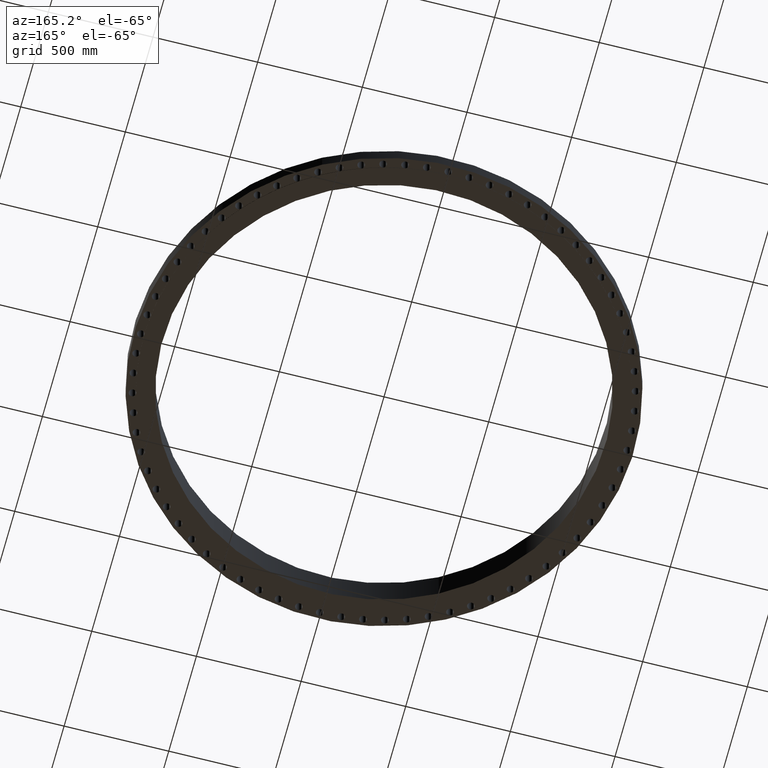
[diagram: clean part render]
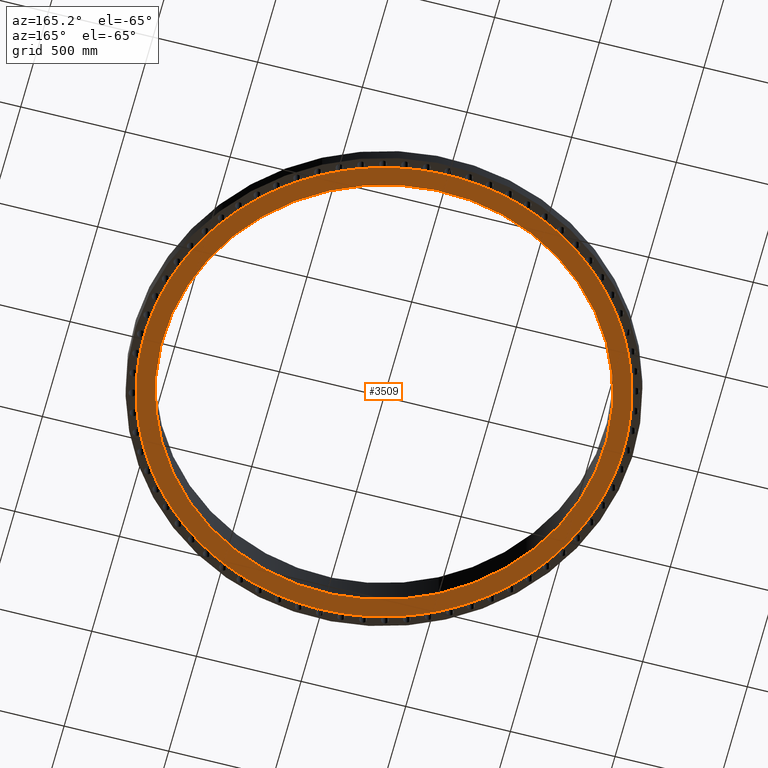
[diagram: same view with one face highlighted and labeled with its STEP entity id]
A machine part, auxiliary view. The second image highlights one B-rep face of the part: STEP entity #3509.
In plain terms, the highlighted planar face has unit normal (0, 0, -1).
Its self-contained STEP definition (entity closure, byte-faithful):
#91=AXIS2_PLACEMENT_3D('Circle Axis2P3D',#89,#90,$) ;
#409=AXIS2_PLACEMENT_3D('Circle Axis2P3D',#407,#408,$) ;
#428=AXIS2_PLACEMENT_3D('Circle Axis2P3D',#426,#427,$) ;
#445=AXIS2_PLACEMENT_3D('Circle Axis2P3D',#443,#444,$) ;
#487=AXIS2_PLACEMENT_3D('Circle Axis2P3D',#485,#486,$) ;
#515=AXIS2_PLACEMENT_3D('Circle Axis2P3D',#513,#514,$) ;
#557=AXIS2_PLACEMENT_3D('Circle Axis2P3D',#555,#556,$) ;
#576=AXIS2_PLACEMENT_3D('Circle Axis2P3D',#574,#575,$) ;
#611=AXIS2_PLACEMENT_3D('Circle Axis2P3D',#609,#610,$) ;
#655=AXIS2_PLACEMENT_3D('Circle Axis2P3D',#653,#654,$) ;
#690=AXIS2_PLACEMENT_3D('Circle Axis2P3D',#688,#689,$) ;
#725=AXIS2_PLACEMENT_3D('Circle Axis2P3D',#723,#724,$) ;
#767=AXIS2_PLACEMENT_3D('Circle Axis2P3D',#765,#766,$) ;
#795=AXIS2_PLACEMENT_3D('Circle Axis2P3D',#793,#794,$) ;
#830=AXIS2_PLACEMENT_3D('Circle Axis2P3D',#828,#829,$) ;
#856=AXIS2_PLACEMENT_3D('Circle Axis2P3D',#854,#855,$) ;
#891=AXIS2_PLACEMENT_3D('Circle Axis2P3D',#889,#890,$) ;
#933=AXIS2_PLACEMENT_3D('Circle Axis2P3D',#931,#932,$) ;
#961=AXIS2_PLACEMENT_3D('Circle Axis2P3D',#959,#960,$) ;
#1003=AXIS2_PLACEMENT_3D('Circle Axis2P3D',#1001,#1002,$) ;
#1022=AXIS2_PLACEMENT_3D('Circle Axis2P3D',#1020,#1021,$) ;
#1057=AXIS2_PLACEMENT_3D('Circle Axis2P3D',#1055,#1056,$) ;
#1092=AXIS2_PLACEMENT_3D('Circle Axis2P3D',#1090,#1091,$) ;
#1127=AXIS2_PLACEMENT_3D('Circle Axis2P3D',#1125,#1126,$) ;
#1162=AXIS2_PLACEMENT_3D('Circle Axis2P3D',#1160,#1161,$) ;
#1197=AXIS2_PLACEMENT_3D('Circle Axis2P3D',#1195,#1196,$) ;
#1232=AXIS2_PLACEMENT_3D('Circle Axis2P3D',#1230,#1231,$) ;
#1267=AXIS2_PLACEMENT_3D('Circle Axis2P3D',#1265,#1266,$) ;
#1311=AXIS2_PLACEMENT_3D('Circle Axis2P3D',#1309,#1310,$) ;
#1346=AXIS2_PLACEMENT_3D('Circle Axis2P3D',#1344,#1345,$) ;
#1381=AXIS2_PLACEMENT_3D('Circle Axis2P3D',#1379,#1380,$) ;
#1416=AXIS2_PLACEMENT_3D('Circle Axis2P3D',#1414,#1415,$) ;
#1451=AXIS2_PLACEMENT_3D('Circle Axis2P3D',#1449,#1450,$) ;
#1486=AXIS2_PLACEMENT_3D('Circle Axis2P3D',#1484,#1485,$) ;
#1521=AXIS2_PLACEMENT_3D('Circle Axis2P3D',#1519,#1520,$) ;
#1556=AXIS2_PLACEMENT_3D('Circle Axis2P3D',#1554,#1555,$) ;
#1591=AXIS2_PLACEMENT_3D('Circle Axis2P3D',#1589,#1590,$) ;
#1626=AXIS2_PLACEMENT_3D('Circle Axis2P3D',#1624,#1625,$) ;
#1661=AXIS2_PLACEMENT_3D('Circle Axis2P3D',#1659,#1660,$) ;
#1696=AXIS2_PLACEMENT_3D('Circle Axis2P3D',#1694,#1695,$) ;
#1731=AXIS2_PLACEMENT_3D('Circle Axis2P3D',#1729,#1730,$) ;
#1773=AXIS2_PLACEMENT_3D('Circle Axis2P3D',#1771,#1772,$) ;
#1808=AXIS2_PLACEMENT_3D('Circle Axis2P3D',#1806,#1807,$) ;
#1827=AXIS2_PLACEMENT_3D('Circle Axis2P3D',#1825,#1826,$) ;
#1862=AXIS2_PLACEMENT_3D('Circle Axis2P3D',#1860,#1861,$) ;
#1906=AXIS2_PLACEMENT_3D('Circle Axis2P3D',#1904,#1905,$) ;
#1941=AXIS2_PLACEMENT_3D('Circle Axis2P3D',#1939,#1940,$) ;
#1976=AXIS2_PLACEMENT_3D('Circle Axis2P3D',#1974,#1975,$) ;
#2002=AXIS2_PLACEMENT_3D('Circle Axis2P3D',#2000,#2001,$) ;
#2053=AXIS2_PLACEMENT_3D('Circle Axis2P3D',#2051,#2052,$) ;
#2095=AXIS2_PLACEMENT_3D('Circle Axis2P3D',#2093,#2094,$) ;
#2123=AXIS2_PLACEMENT_3D('Circle Axis2P3D',#2121,#2122,$) ;
#2158=AXIS2_PLACEMENT_3D('Circle Axis2P3D',#2156,#2157,$) ;
#2193=AXIS2_PLACEMENT_3D('Circle Axis2P3D',#2191,#2192,$) ;
#2212=AXIS2_PLACEMENT_3D('Circle Axis2P3D',#2210,#2211,$) ;
#2261=AXIS2_PLACEMENT_3D('Circle Axis2P3D',#2259,#2260,$) ;
#2273=AXIS2_PLACEMENT_3D('Circle Axis2P3D',#2271,#2272,$) ;
#2324=AXIS2_PLACEMENT_3D('Circle Axis2P3D',#2322,#2323,$) ;
#2359=AXIS2_PLACEMENT_3D('Circle Axis2P3D',#2357,#2358,$) ;
#2394=AXIS2_PLACEMENT_3D('Circle Axis2P3D',#2392,#2393,$) ;
#2429=AXIS2_PLACEMENT_3D('Circle Axis2P3D',#2427,#2428,$) ;
#2464=AXIS2_PLACEMENT_3D('Circle Axis2P3D',#2462,#2463,$) ;
#2506=AXIS2_PLACEMENT_3D('Circle Axis2P3D',#2504,#2505,$) ;
#2541=AXIS2_PLACEMENT_3D('Circle Axis2P3D',#2539,#2540,$) ;
#2576=AXIS2_PLACEMENT_3D('Circle Axis2P3D',#2574,#2575,$) ;
#2611=AXIS2_PLACEMENT_3D('Circle Axis2P3D',#2609,#2610,$) ;
#2646=AXIS2_PLACEMENT_3D('Circle Axis2P3D',#2644,#2645,$) ;
#2681=AXIS2_PLACEMENT_3D('Circle Axis2P3D',#2679,#2680,$) ;
#2716=AXIS2_PLACEMENT_3D('Circle Axis2P3D',#2714,#2715,$) ;
#2751=AXIS2_PLACEMENT_3D('Circle Axis2P3D',#2749,#2750,$) ;
#2779=AXIS2_PLACEMENT_3D('Circle Axis2P3D',#2777,#2778,$) ;
#2814=AXIS2_PLACEMENT_3D('Circle Axis2P3D',#2812,#2813,$) ;
#2856=AXIS2_PLACEMENT_3D('Circle Axis2P3D',#2854,#2855,$) ;
#2891=AXIS2_PLACEMENT_3D('Circle Axis2P3D',#2889,#2890,$) ;
#2910=AXIS2_PLACEMENT_3D('Circle Axis2P3D',#2908,#2909,$) ;
#2945=AXIS2_PLACEMENT_3D('Circle Axis2P3D',#2943,#2944,$) ;
#2964=AXIS2_PLACEMENT_3D('Circle Axis2P3D',#2962,#2963,$) ;
#3000=AXIS2_PLACEMENT_3D('Plane Axis2P3D',#2997,#2998,#2999) ;
#3004=AXIS2_PLACEMENT_3D('Circle Axis2P3D',#3002,#3003,$) ;
#3009=AXIS2_PLACEMENT_3D('Circle Axis2P3D',#3007,#3008,$) ;
#3014=AXIS2_PLACEMENT_3D('Circle Axis2P3D',#3012,#3013,$) ;
#3019=AXIS2_PLACEMENT_3D('Circle Axis2P3D',#3017,#3018,$) ;
#3024=AXIS2_PLACEMENT_3D('Circle Axis2P3D',#3022,#3023,$) ;
#3029=AXIS2_PLACEMENT_3D('Circle Axis2P3D',#3027,#3028,$) ;
#3034=AXIS2_PLACEMENT_3D('Circle Axis2P3D',#3032,#3033,$) ;
#3039=AXIS2_PLACEMENT_3D('Circle Axis2P3D',#3037,#3038,$) ;
#3044=AXIS2_PLACEMENT_3D('Circle Axis2P3D',#3042,#3043,$) ;
#3049=AXIS2_PLACEMENT_3D('Circle Axis2P3D',#3047,#3048,$) ;
#3054=AXIS2_PLACEMENT_3D('Circle Axis2P3D',#3052,#3053,$) ;
#3059=AXIS2_PLACEMENT_3D('Circle Axis2P3D',#3057,#3058,$) ;
#3064=AXIS2_PLACEMENT_3D('Circle Axis2P3D',#3062,#3063,$) ;
#3069=AXIS2_PLACEMENT_3D('Circle Axis2P3D',#3067,#3068,$) ;
#3074=AXIS2_PLACEMENT_3D('Circle Axis2P3D',#3072,#3073,$) ;
#3079=AXIS2_PLACEMENT_3D('Circle Axis2P3D',#3077,#3078,$) ;
#3084=AXIS2_PLACEMENT_3D('Circle Axis2P3D',#3082,#3083,$) ;
#3089=AXIS2_PLACEMENT_3D('Circle Axis2P3D',#3087,#3088,$) ;
#3094=AXIS2_PLACEMENT_3D('Circle Axis2P3D',#3092,#3093,$) ;
#3099=AXIS2_PLACEMENT_3D('Circle Axis2P3D',#3097,#3098,$) ;
#3104=AXIS2_PLACEMENT_3D('Circle Axis2P3D',#3102,#3103,$) ;
#3109=AXIS2_PLACEMENT_3D('Circle Axis2P3D',#3107,#3108,$) ;
#3114=AXIS2_PLACEMENT_3D('Circle Axis2P3D',#3112,#3113,$) ;
#3119=AXIS2_PLACEMENT_3D('Circle Axis2P3D',#3117,#3118,$) ;
#3124=AXIS2_PLACEMENT_3D('Circle Axis2P3D',#3122,#3123,$) ;
#3129=AXIS2_PLACEMENT_3D('Circle Axis2P3D',#3127,#3128,$) ;
#3134=AXIS2_PLACEMENT_3D('Circle Axis2P3D',#3132,#3133,$) ;
#3139=AXIS2_PLACEMENT_3D('Circle Axis2P3D',#3137,#3138,$) ;
#3144=AXIS2_PLACEMENT_3D('Circle Axis2P3D',#3142,#3143,$) ;
#3149=AXIS2_PLACEMENT_3D('Circle Axis2P3D',#3147,#3148,$) ;
#3154=AXIS2_PLACEMENT_3D('Circle Axis2P3D',#3152,#3153,$) ;
#3159=AXIS2_PLACEMENT_3D('Circle Axis2P3D',#3157,#3158,$) ;
#3164=AXIS2_PLACEMENT_3D('Circle Axis2P3D',#3162,#3163,$) ;
#3169=AXIS2_PLACEMENT_3D('Circle Axis2P3D',#3167,#3168,$) ;
#3174=AXIS2_PLACEMENT_3D('Circle Axis2P3D',#3172,#3173,$) ;
#3179=AXIS2_PLACEMENT_3D('Circle Axis2P3D',#3177,#3178,$) ;
#3184=AXIS2_PLACEMENT_3D('Circle Axis2P3D',#3182,#3183,$) ;
#3189=AXIS2_PLACEMENT_3D('Circle Axis2P3D',#3187,#3188,$) ;
#3194=AXIS2_PLACEMENT_3D('Circle Axis2P3D',#3192,#3193,$) ;
#3199=AXIS2_PLACEMENT_3D('Circle Axis2P3D',#3197,#3198,$) ;
#3204=AXIS2_PLACEMENT_3D('Circle Axis2P3D',#3202,#3203,$) ;
#3209=AXIS2_PLACEMENT_3D('Circle Axis2P3D',#3207,#3208,$) ;
#3214=AXIS2_PLACEMENT_3D('Circle Axis2P3D',#3212,#3213,$) ;
#3219=AXIS2_PLACEMENT_3D('Circle Axis2P3D',#3217,#3218,$) ;
#3224=AXIS2_PLACEMENT_3D('Circle Axis2P3D',#3222,#3223,$) ;
#3229=AXIS2_PLACEMENT_3D('Circle Axis2P3D',#3227,#3228,$) ;
#3234=AXIS2_PLACEMENT_3D('Circle Axis2P3D',#3232,#3233,$) ;
#3239=AXIS2_PLACEMENT_3D('Circle Axis2P3D',#3237,#3238,$) ;
#3244=AXIS2_PLACEMENT_3D('Circle Axis2P3D',#3242,#3243,$) ;
#3249=AXIS2_PLACEMENT_3D('Circle Axis2P3D',#3247,#3248,$) ;
#3254=AXIS2_PLACEMENT_3D('Circle Axis2P3D',#3252,#3253,$) ;
#3259=AXIS2_PLACEMENT_3D('Circle Axis2P3D',#3257,#3258,$) ;
#3264=AXIS2_PLACEMENT_3D('Circle Axis2P3D',#3262,#3263,$) ;
#3269=AXIS2_PLACEMENT_3D('Circle Axis2P3D',#3267,#3268,$) ;
#3274=AXIS2_PLACEMENT_3D('Circle Axis2P3D',#3272,#3273,$) ;
#3279=AXIS2_PLACEMENT_3D('Circle Axis2P3D',#3277,#3278,$) ;
#3284=AXIS2_PLACEMENT_3D('Circle Axis2P3D',#3282,#3283,$) ;
#3289=AXIS2_PLACEMENT_3D('Circle Axis2P3D',#3287,#3288,$) ;
#3294=AXIS2_PLACEMENT_3D('Circle Axis2P3D',#3292,#3293,$) ;
#3299=AXIS2_PLACEMENT_3D('Circle Axis2P3D',#3297,#3298,$) ;
#3304=AXIS2_PLACEMENT_3D('Circle Axis2P3D',#3302,#3303,$) ;
#3309=AXIS2_PLACEMENT_3D('Circle Axis2P3D',#3307,#3308,$) ;
#3314=AXIS2_PLACEMENT_3D('Circle Axis2P3D',#3312,#3313,$) ;
#3319=AXIS2_PLACEMENT_3D('Circle Axis2P3D',#3317,#3318,$) ;
#3324=AXIS2_PLACEMENT_3D('Circle Axis2P3D',#3322,#3323,$) ;
#3329=AXIS2_PLACEMENT_3D('Circle Axis2P3D',#3327,#3328,$) ;
#3334=AXIS2_PLACEMENT_3D('Circle Axis2P3D',#3332,#3333,$) ;
#3339=AXIS2_PLACEMENT_3D('Circle Axis2P3D',#3337,#3338,$) ;
#3344=AXIS2_PLACEMENT_3D('Circle Axis2P3D',#3342,#3343,$) ;
#3349=AXIS2_PLACEMENT_3D('Circle Axis2P3D',#3347,#3348,$) ;
#3354=AXIS2_PLACEMENT_3D('Circle Axis2P3D',#3352,#3353,$) ;
#86=CARTESIAN_POINT('Vertex',(45.0649248636,-0.0822925099638,-0.0625000000002)) ;
#89=CARTESIAN_POINT('Axis2P3D Location',(45.7500000002,0.,-0.0625000000002)) ;
#93=CARTESIAN_POINT('Vertex',(45.0649248636,0.0822925099638,-0.0625000000002)) ;
#404=CARTESIAN_POINT('Vertex',(-19.9560880445,-36.5293741388,-0.0625000000003)) ;
#407=CARTESIAN_POINT('Axis2P3D Location',(0.,0.,-0.0625000000003)) ;
#411=CARTESIAN_POINT('Vertex',(19.9560880445,36.5293741388,-0.0625000000003)) ;
#426=CARTESIAN_POINT('Axis2P3D Location',(0.,0.,-0.0625000000003)) ;
#443=CARTESIAN_POINT('Axis2P3D Location',(0.,0.,-0.0625000000002)) ;
#447=CARTESIAN_POINT('Vertex',(44.3945773389,7.74439977743,-0.0625000000002)) ;
#449=CARTESIAN_POINT('Vertex',(44.8862669542,4.00964636047,-0.0625000000002)) ;
#485=CARTESIAN_POINT('Axis2P3D Location',(0.,0.,-0.0625000000002)) ;
#489=CARTESIAN_POINT('Vertex',(44.9006114838,3.84568763623,-0.0625000000002)) ;
#510=CARTESIAN_POINT('Vertex',(44.3659974502,7.90648438108,-0.0625000000002)) ;
#513=CARTESIAN_POINT('Axis2P3D Location',(0.,0.,-0.0625000000002)) ;
#517=CARTESIAN_POINT('Vertex',(43.5506736543,11.5841723601,-0.0625000000002)) ;
#552=CARTESIAN_POINT('Vertex',(43.5080759166,11.7431492815,-0.0625000000002)) ;
#555=CARTESIAN_POINT('Axis2P3D Location',(0.,0.,-0.0625000000002)) ;
#559=CARTESIAN_POINT('Vertex',(42.3753230466,15.3357823964,-0.0625000000002)) ;
#574=CARTESIAN_POINT('Axis2P3D Location',(0.,0.,-0.0625000000002)) ;
#578=CARTESIAN_POINT('Vertex',(40.8774706436,18.9706778687,-0.0625000000002)) ;
#580=CARTESIAN_POINT('Vertex',(42.3190316545,15.4904417252,-0.0625000000002)) ;
#609=CARTESIAN_POINT('Axis2P3D Location',(0.,0.,-0.0625000000002)) ;
#613=CARTESIAN_POINT('Vertex',(39.0685160065,22.4611950276,-0.0625000000002)) ;
#615=CARTESIAN_POINT('Vertex',(40.8079140086,19.1198425539,-0.0625000000002)) ;
#650=CARTESIAN_POINT('Vertex',(38.9862234965,22.603729836,-0.0625000000002)) ;
#653=CARTESIAN_POINT('Axis2P3D Location',(0.,0.,-0.0625000000002)) ;
#657=CARTESIAN_POINT('Vertex',(36.9622263723,25.7807689299,-0.0625000000002)) ;
#685=CARTESIAN_POINT('Vertex',(36.8678242831,25.9155890854,-0.0625000000002)) ;
#688=CARTESIAN_POINT('Axis2P3D Location',(0.,0.,-0.0625000000002)) ;
#692=CARTESIAN_POINT('Vertex',(34.5746318771,28.9041356138,-0.0625000000002)) ;
#720=CARTESIAN_POINT('Vertex',(34.4688386655,29.0302150537,-0.0625000000002)) ;
#723=CARTESIAN_POINT('Axis2P3D Location',(0.,0.,-0.0625000000002)) ;
#727=CARTESIAN_POINT('Vertex',(31.9239035565,31.8075243729,-0.0625000000002)) ;
#762=CARTESIAN_POINT('Vertex',(31.8075243729,31.9239035565,-0.0625000000002)) ;
#765=CARTESIAN_POINT('Axis2P3D Location',(0.,0.,-0.0625000000002)) ;
#769=CARTESIAN_POINT('Vertex',(29.0302150537,34.4688386655,-0.0625000000002)) ;
#790=CARTESIAN_POINT('Vertex',(28.9041356138,34.5746318771,-0.0625000000002)) ;
#793=CARTESIAN_POINT('Axis2P3D Location',(0.,0.,-0.0625000000002)) ;
#797=CARTESIAN_POINT('Vertex',(25.9155890854,36.8678242831,-0.0625000000002)) ;
#825=CARTESIAN_POINT('Vertex',(25.7807689299,36.9622263723,-0.0625000000002)) ;
#828=CARTESIAN_POINT('Axis2P3D Location',(0.,0.,-0.0625000000002)) ;
#832=CARTESIAN_POINT('Vertex',(22.603729836,38.9862234965,-0.0625000000002)) ;
#854=CARTESIAN_POINT('Axis2P3D Location',(0.,0.,-0.0625000000002)) ;
#858=CARTESIAN_POINT('Vertex',(21.6053118973,39.5482581517,-0.0625000000002)) ;
#860=CARTESIAN_POINT('Vertex',(22.4611950276,39.0685160065,-0.0625000000002)) ;
#889=CARTESIAN_POINT('Axis2P3D Location',(0.,0.,-0.0625000000002)) ;
#893=CARTESIAN_POINT('Vertex',(15.4904417252,42.3190316545,-0.0625000000002)) ;
#895=CARTESIAN_POINT('Vertex',(18.9706778687,40.8774706436,-0.0625000000002)) ;
#931=CARTESIAN_POINT('Axis2P3D Location',(0.,0.,-0.0625000000002)) ;
#935=CARTESIAN_POINT('Vertex',(19.1198425539,40.8079140086,-0.0625000000002)) ;
#956=CARTESIAN_POINT('Vertex',(15.3357823964,42.3753230466,-0.0625000000002)) ;
#959=CARTESIAN_POINT('Axis2P3D Location',(0.,0.,-0.0625000000002)) ;
#963=CARTESIAN_POINT('Vertex',(11.7431492815,43.5080759166,-0.0625000000002)) ;
#998=CARTESIAN_POINT('Vertex',(11.5841723601,43.5506736543,-0.0625000000002)) ;
#1001=CARTESIAN_POINT('Axis2P3D Location',(0.,0.,-0.0625000000002)) ;
#1005=CARTESIAN_POINT('Vertex',(7.90648438108,44.3659974502,-0.0625000000002)) ;
#1020=CARTESIAN_POINT('Axis2P3D Location',(0.,0.,-0.0625000000002)) ;
#1024=CARTESIAN_POINT('Vertex',(4.00964636047,44.8862669542,-0.0625000000002)) ;
#1026=CARTESIAN_POINT('Vertex',(7.74439977743,44.3945773389,-0.0625000000002)) ;
#1055=CARTESIAN_POINT('Axis2P3D Location',(0.,0.,-0.0625000000002)) ;
#1059=CARTESIAN_POINT('Vertex',(0.0822925099633,45.0649248636,-0.0625000000002)) ;
#1061=CARTESIAN_POINT('Vertex',(3.84568763623,44.9006114838,-0.0625000000002)) ;
#1090=CARTESIAN_POINT('Axis2P3D Location',(0.,0.,-0.0625000000002)) ;
#1094=CARTESIAN_POINT('Vertex',(-3.84568763623,44.9006114838,-0.0625000000002)) ;
#1096=CARTESIAN_POINT('Vertex',(-0.0822925099634,45.0649248636,-0.0625000000002)) ;
#1125=CARTESIAN_POINT('Axis2P3D Location',(0.,0.,-0.0625000000002)) ;
#1129=CARTESIAN_POINT('Vertex',(-7.74439977743,44.3945773389,-0.0625000000002)) ;
#1131=CARTESIAN_POINT('Vertex',(-4.00964636047,44.8862669542,-0.0625000000002)) ;
#1160=CARTESIAN_POINT('Axis2P3D Location',(0.,0.,-0.0625000000002)) ;
#1164=CARTESIAN_POINT('Vertex',(-11.5841723601,43.5506736543,-0.0625000000002)) ;
#1166=CARTESIAN_POINT('Vertex',(-7.90648438108,44.3659974502,-0.0625000000002)) ;
#1195=CARTESIAN_POINT('Axis2P3D Location',(0.,0.,-0.0625000000002)) ;
#1199=CARTESIAN_POINT('Vertex',(-15.3357823964,42.3753230466,-0.0625000000002)) ;
#1201=CARTESIAN_POINT('Vertex',(-11.7431492815,43.5080759166,-0.0625000000002)) ;
#1230=CARTESIAN_POINT('Axis2P3D Location',(0.,0.,-0.0625000000002)) ;
#1234=CARTESIAN_POINT('Vertex',(-18.9706778687,40.8774706436,-0.0625000000002)) ;
#1236=CARTESIAN_POINT('Vertex',(-15.4904417252,42.3190316545,-0.0625000000002)) ;
#1265=CARTESIAN_POINT('Axis2P3D Location',(0.,0.,-0.0625000000002)) ;
#1269=CARTESIAN_POINT('Vertex',(-22.4611950276,39.0685160065,-0.0625000000002)) ;
#1271=CARTESIAN_POINT('Vertex',(-19.1198425539,40.8079140086,-0.0625000000002)) ;
#1306=CARTESIAN_POINT('Vertex',(-22.603729836,38.9862234965,-0.0625000000002)) ;
#1309=CARTESIAN_POINT('Axis2P3D Location',(0.,0.,-0.0625000000002)) ;
#1313=CARTESIAN_POINT('Vertex',(-25.7807689299,36.9622263723,-0.0625000000002)) ;
#1341=CARTESIAN_POINT('Vertex',(-25.9155890854,36.8678242831,-0.0625000000002)) ;
#1344=CARTESIAN_POINT('Axis2P3D Location',(0.,0.,-0.0625000000002)) ;
#1348=CARTESIAN_POINT('Vertex',(-28.9041356138,34.5746318771,-0.0625000000002)) ;
#1376=CARTESIAN_POINT('Vertex',(-29.0302150537,34.4688386655,-0.0625000000002)) ;
#1379=CARTESIAN_POINT('Axis2P3D Location',(0.,0.,-0.0625000000002)) ;
#1383=CARTESIAN_POINT('Vertex',(-31.8075243729,31.9239035565,-0.0625000000002)) ;
#1411=CARTESIAN_POINT('Vertex',(-31.9239035565,31.8075243729,-0.0625000000002)) ;
#1414=CARTESIAN_POINT('Axis2P3D Location',(0.,0.,-0.0625000000002)) ;
#1418=CARTESIAN_POINT('Vertex',(-34.4688386655,29.0302150537,-0.0625000000002)) ;
#1446=CARTESIAN_POINT('Vertex',(-34.5746318771,28.9041356138,-0.0625000000002)) ;
#1449=CARTESIAN_POINT('Axis2P3D Location',(0.,0.,-0.0625000000002)) ;
#1453=CARTESIAN_POINT('Vertex',(-36.8678242831,25.9155890854,-0.0625000000002)) ;
#1481=CARTESIAN_POINT('Vertex',(-36.9622263723,25.7807689299,-0.0625000000002)) ;
#1484=CARTESIAN_POINT('Axis2P3D Location',(0.,0.,-0.0625000000002)) ;
#1488=CARTESIAN_POINT('Vertex',(-38.9862234965,22.603729836,-0.0625000000002)) ;
#1516=CARTESIAN_POINT('Vertex',(-39.0685160065,22.4611950276,-0.0625000000002)) ;
#1519=CARTESIAN_POINT('Axis2P3D Location',(0.,0.,-0.0625000000002)) ;
#1523=CARTESIAN_POINT('Vertex',(-40.8079140086,19.1198425539,-0.0625000000002)) ;
#1551=CARTESIAN_POINT('Vertex',(-40.8774706436,18.9706778687,-0.0625000000002)) ;
#1554=CARTESIAN_POINT('Axis2P3D Location',(0.,0.,-0.0625000000002)) ;
#1558=CARTESIAN_POINT('Vertex',(-42.3190316545,15.4904417252,-0.0625000000002)) ;
#1586=CARTESIAN_POINT('Vertex',(-42.3753230466,15.3357823964,-0.0625000000002)) ;
#1589=CARTESIAN_POINT('Axis2P3D Location',(0.,0.,-0.0625000000002)) ;
#1593=CARTESIAN_POINT('Vertex',(-43.5080759166,11.7431492815,-0.0625000000002)) ;
#1621=CARTESIAN_POINT('Vertex',(-43.5506736543,11.5841723601,-0.0625000000002)) ;
#1624=CARTESIAN_POINT('Axis2P3D Location',(0.,0.,-0.0625000000002)) ;
#1628=CARTESIAN_POINT('Vertex',(-44.3659974502,7.90648438108,-0.0625000000002)) ;
#1656=CARTESIAN_POINT('Vertex',(-44.3945773389,7.74439977743,-0.0625000000002)) ;
#1659=CARTESIAN_POINT('Axis2P3D Location',(0.,0.,-0.0625000000002)) ;
#1663=CARTESIAN_POINT('Vertex',(-44.8862669542,4.00964636047,-0.0625000000002)) ;
#1691=CARTESIAN_POINT('Vertex',(-44.9006114838,3.84568763623,-0.0625000000002)) ;
#1694=CARTESIAN_POINT('Axis2P3D Location',(0.,0.,-0.0625000000002)) ;
#1698=CARTESIAN_POINT('Vertex',(-45.0649248636,0.0822925099634,-0.0625000000002)) ;
#1726=CARTESIAN_POINT('Vertex',(-45.0649248636,-0.0822925099634,-0.0625000000002)) ;
#1729=CARTESIAN_POINT('Axis2P3D Location',(0.,0.,-0.0625000000002)) ;
#1733=CARTESIAN_POINT('Vertex',(-44.9006114838,-3.84568763623,-0.0625000000002)) ;
#1768=CARTESIAN_POINT('Vertex',(-44.8862669542,-4.00964636047,-0.0625000000002)) ;
#1771=CARTESIAN_POINT('Axis2P3D Location',(0.,0.,-0.0625000000002)) ;
#1775=CARTESIAN_POINT('Vertex',(-44.3945773389,-7.74439977743,-0.0625000000002)) ;
#1803=CARTESIAN_POINT('Vertex',(-40.8079140086,-19.1198425539,-0.0625000000002)) ;
#1806=CARTESIAN_POINT('Axis2P3D Location',(0.,0.,-0.0625000000002)) ;
#1810=CARTESIAN_POINT('Vertex',(-39.0685160065,-22.4611950276,-0.0625000000002)) ;
#1825=CARTESIAN_POINT('Axis2P3D Location',(0.,0.,-0.0625000000002)) ;
#1829=CARTESIAN_POINT('Vertex',(-36.9622263723,-25.7807689299,-0.0625000000002)) ;
#1831=CARTESIAN_POINT('Vertex',(-38.9862234965,-22.603729836,-0.0625000000002)) ;
#1860=CARTESIAN_POINT('Axis2P3D Location',(0.,0.,-0.0625000000002)) ;
#1864=CARTESIAN_POINT('Vertex',(-34.5746318771,-28.9041356138,-0.0625000000002)) ;
#1866=CARTESIAN_POINT('Vertex',(-36.8678242831,-25.9155890854,-0.0625000000002)) ;
#1901=CARTESIAN_POINT('Vertex',(-34.4688386655,-29.0302150537,-0.0625000000002)) ;
#1904=CARTESIAN_POINT('Axis2P3D Location',(0.,0.,-0.0625000000002)) ;
#1908=CARTESIAN_POINT('Vertex',(-31.9239035565,-31.8075243729,-0.0625000000002)) ;
#1936=CARTESIAN_POINT('Vertex',(-31.8075243729,-31.9239035565,-0.0625000000002)) ;
#1939=CARTESIAN_POINT('Axis2P3D Location',(0.,0.,-0.0625000000002)) ;
#1943=CARTESIAN_POINT('Vertex',(-29.0302150537,-34.4688386655,-0.0625000000002)) ;
#1971=CARTESIAN_POINT('Vertex',(-25.7807689299,-36.9622263723,-0.0625000000002)) ;
#1974=CARTESIAN_POINT('Axis2P3D Location',(0.,0.,-0.0625000000002)) ;
#1978=CARTESIAN_POINT('Vertex',(-22.603729836,-38.9862234965,-0.0625000000002)) ;
#2000=CARTESIAN_POINT('Axis2P3D Location',(0.,0.,-0.0625000000002)) ;
#2004=CARTESIAN_POINT('Vertex',(-21.6053118973,-39.5482581517,-0.0625000000002)) ;
#2006=CARTESIAN_POINT('Vertex',(-22.4611950276,-39.0685160065,-0.0625000000002)) ;
#2048=CARTESIAN_POINT('Vertex',(-28.9041356138,-34.5746318771,-0.0625000000002)) ;
#2051=CARTESIAN_POINT('Axis2P3D Location',(0.,0.,-0.0625000000002)) ;
#2055=CARTESIAN_POINT('Vertex',(-25.9155890854,-36.8678242831,-0.0625000000002)) ;
#2076=CARTESIAN_POINT('Vertex',(-42.3753230466,-15.3357823964,-0.0625000000002)) ;
#2090=CARTESIAN_POINT('Vertex',(-43.5080759166,-11.7431492815,-0.0625000000002)) ;
#2093=CARTESIAN_POINT('Axis2P3D Location',(0.,0.,-0.0625000000002)) ;
#2118=CARTESIAN_POINT('Vertex',(-44.3659974502,-7.90648438108,-0.0625000000002)) ;
#2121=CARTESIAN_POINT('Axis2P3D Location',(0.,0.,-0.0625000000002)) ;
#2125=CARTESIAN_POINT('Vertex',(-43.5506736543,-11.5841723601,-0.0625000000002)) ;
#2153=CARTESIAN_POINT('Vertex',(-42.3190316545,-15.4904417252,-0.0625000000002)) ;
#2156=CARTESIAN_POINT('Axis2P3D Location',(0.,0.,-0.0625000000002)) ;
#2160=CARTESIAN_POINT('Vertex',(-40.8774706436,-18.9706778687,-0.0625000000002)) ;
#2188=CARTESIAN_POINT('Vertex',(44.3945773389,-7.74439977743,-0.0625000000002)) ;
#2191=CARTESIAN_POINT('Axis2P3D Location',(0.,0.,-0.0625000000002)) ;
#2195=CARTESIAN_POINT('Vertex',(44.8862669542,-4.00964636047,-0.0625000000002)) ;
#2210=CARTESIAN_POINT('Axis2P3D Location',(0.,0.,-0.0625000000002)) ;
#2214=CARTESIAN_POINT('Vertex',(44.9006114838,-3.84568763623,-0.0625000000002)) ;
#2242=CARTESIAN_POINT('Vertex',(44.3659974502,-7.90648438108,-0.0625000000002)) ;
#2256=CARTESIAN_POINT('Vertex',(43.5506736543,-11.5841723601,-0.0625000000002)) ;
#2259=CARTESIAN_POINT('Axis2P3D Location',(0.,0.,-0.0625000000002)) ;
#2271=CARTESIAN_POINT('Axis2P3D Location',(0.,0.,-0.0625000000002)) ;
#2275=CARTESIAN_POINT('Vertex',(43.5080759166,-11.7431492815,-0.0625000000002)) ;
#2277=CARTESIAN_POINT('Vertex',(42.3753230466,-15.3357823964,-0.0625000000002)) ;
#2319=CARTESIAN_POINT('Vertex',(40.8774706436,-18.9706778687,-0.0625000000002)) ;
#2322=CARTESIAN_POINT('Axis2P3D Location',(0.,0.,-0.0625000000002)) ;
#2326=CARTESIAN_POINT('Vertex',(42.3190316545,-15.4904417252,-0.0625000000002)) ;
#2354=CARTESIAN_POINT('Vertex',(39.0685160065,-22.4611950276,-0.0625000000002)) ;
#2357=CARTESIAN_POINT('Axis2P3D Location',(0.,0.,-0.0625000000002)) ;
#2361=CARTESIAN_POINT('Vertex',(40.8079140086,-19.1198425539,-0.0625000000002)) ;
#2389=CARTESIAN_POINT('Vertex',(36.9622263723,-25.7807689299,-0.0625000000002)) ;
#2392=CARTESIAN_POINT('Axis2P3D Location',(0.,0.,-0.0625000000002)) ;
#2396=CARTESIAN_POINT('Vertex',(38.9862234965,-22.603729836,-0.0625000000002)) ;
#2424=CARTESIAN_POINT('Vertex',(34.5746318771,-28.9041356138,-0.0625000000002)) ;
#2427=CARTESIAN_POINT('Axis2P3D Location',(0.,0.,-0.0625000000002)) ;
#2431=CARTESIAN_POINT('Vertex',(36.8678242831,-25.9155890854,-0.0625000000002)) ;
#2459=CARTESIAN_POINT('Vertex',(31.9239035565,-31.8075243729,-0.0625000000002)) ;
#2462=CARTESIAN_POINT('Axis2P3D Location',(0.,0.,-0.0625000000002)) ;
#2466=CARTESIAN_POINT('Vertex',(34.4688386655,-29.0302150537,-0.0625000000002)) ;
#2487=CARTESIAN_POINT('Vertex',(31.8075243729,-31.9239035565,-0.0625000000002)) ;
#2501=CARTESIAN_POINT('Vertex',(29.0302150537,-34.4688386655,-0.0625000000002)) ;
#2504=CARTESIAN_POINT('Axis2P3D Location',(0.,0.,-0.0625000000002)) ;
#2522=CARTESIAN_POINT('Vertex',(28.9041356138,-34.5746318771,-0.0625000000002)) ;
#2536=CARTESIAN_POINT('Vertex',(25.9155890854,-36.8678242831,-0.0625000000002)) ;
#2539=CARTESIAN_POINT('Axis2P3D Location',(0.,0.,-0.0625000000002)) ;
#2557=CARTESIAN_POINT('Vertex',(25.7807689299,-36.9622263723,-0.0625000000002)) ;
#2571=CARTESIAN_POINT('Vertex',(22.603729836,-38.9862234965,-0.0625000000002)) ;
#2574=CARTESIAN_POINT('Axis2P3D Location',(0.,0.,-0.0625000000002)) ;
#2592=CARTESIAN_POINT('Vertex',(22.4611950276,-39.0685160065,-0.0625000000002)) ;
#2606=CARTESIAN_POINT('Vertex',(19.1198425539,-40.8079140086,-0.0625000000002)) ;
#2609=CARTESIAN_POINT('Axis2P3D Location',(0.,0.,-0.0625000000002)) ;
#2627=CARTESIAN_POINT('Vertex',(18.9706778687,-40.8774706436,-0.0625000000002)) ;
#2641=CARTESIAN_POINT('Vertex',(15.4904417252,-42.3190316545,-0.0625000000002)) ;
#2644=CARTESIAN_POINT('Axis2P3D Location',(0.,0.,-0.0625000000002)) ;
#2662=CARTESIAN_POINT('Vertex',(15.3357823964,-42.3753230466,-0.0625000000002)) ;
#2676=CARTESIAN_POINT('Vertex',(11.7431492815,-43.5080759166,-0.0625000000002)) ;
#2679=CARTESIAN_POINT('Axis2P3D Location',(0.,0.,-0.0625000000002)) ;
#2697=CARTESIAN_POINT('Vertex',(11.5841723601,-43.5506736543,-0.0625000000002)) ;
#2711=CARTESIAN_POINT('Vertex',(7.90648438108,-44.3659974502,-0.0625000000002)) ;
#2714=CARTESIAN_POINT('Axis2P3D Location',(0.,0.,-0.0625000000002)) ;
#2732=CARTESIAN_POINT('Vertex',(7.74439977743,-44.3945773389,-0.0625000000002)) ;
#2746=CARTESIAN_POINT('Vertex',(4.00964636047,-44.8862669542,-0.0625000000002)) ;
#2749=CARTESIAN_POINT('Axis2P3D Location',(0.,0.,-0.0625000000002)) ;
#2774=CARTESIAN_POINT('Vertex',(-3.84568763623,-44.9006114838,-0.0625000000002)) ;
#2777=CARTESIAN_POINT('Axis2P3D Location',(0.,0.,-0.0625000000002)) ;
#2781=CARTESIAN_POINT('Vertex',(-0.0822925099634,-45.0649248636,-0.0625000000002)) ;
#2809=CARTESIAN_POINT('Vertex',(-7.74439977743,-44.3945773389,-0.0625000000002)) ;
#2812=CARTESIAN_POINT('Axis2P3D Location',(0.,0.,-0.0625000000002)) ;
#2816=CARTESIAN_POINT('Vertex',(-4.00964636047,-44.8862669542,-0.0625000000002)) ;
#2837=CARTESIAN_POINT('Vertex',(-7.90648438108,-44.3659974502,-0.0625000000002)) ;
#2851=CARTESIAN_POINT('Vertex',(-11.5841723601,-43.5506736543,-0.0625000000002)) ;
#2854=CARTESIAN_POINT('Axis2P3D Location',(0.,0.,-0.0625000000002)) ;
#2872=CARTESIAN_POINT('Vertex',(-11.7431492815,-43.5080759166,-0.0625000000002)) ;
#2886=CARTESIAN_POINT('Vertex',(-15.3357823964,-42.3753230466,-0.0625000000002)) ;
#2889=CARTESIAN_POINT('Axis2P3D Location',(0.,0.,-0.0625000000002)) ;
#2908=CARTESIAN_POINT('Axis2P3D Location',(0.,0.,-0.0625000000002)) ;
#2912=CARTESIAN_POINT('Vertex',(-19.1198425539,-40.8079140086,-0.0625000000002)) ;
#2940=CARTESIAN_POINT('Vertex',(-18.9706778687,-40.8774706436,-0.0625000000002)) ;
#2943=CARTESIAN_POINT('Axis2P3D Location',(0.,0.,-0.0625000000002)) ;
#2947=CARTESIAN_POINT('Vertex',(-15.4904417252,-42.3190316545,-0.0625000000002)) ;
#2962=CARTESIAN_POINT('Axis2P3D Location',(0.,0.,-0.0625000000002)) ;
#2966=CARTESIAN_POINT('Vertex',(3.84568763623,-44.9006114838,-0.0625000000002)) ;
#2968=CARTESIAN_POINT('Vertex',(0.0822925099633,-45.0649248636,-0.0625000000002)) ;
#2997=CARTESIAN_POINT('Axis2P3D Location',(0.,41.6250000002,-0.0625000000003)) ;
#3002=CARTESIAN_POINT('Axis2P3D Location',(45.0549547005,-7.94440412829,-0.0625000000003)) ;
#3007=CARTESIAN_POINT('Axis2P3D Location',(44.1911065529,-11.8409713135,-0.0625000000003)) ;
#3012=CARTESIAN_POINT('Axis2P3D Location',(42.9909374011,-15.6474215572,-0.0625000000003)) ;
#3017=CARTESIAN_POINT('Axis2P3D Location',(41.4635812571,-19.3347854747,-0.0625000000003)) ;
#3022=CARTESIAN_POINT('Axis2P3D Location',(39.6206622233,-22.8750000001,-0.0625000000003)) ;
#3027=CARTESIAN_POINT('Axis2P3D Location',(37.4762060264,-26.2411219632,-0.0625000000003)) ;
#3032=CARTESIAN_POINT('Axis2P3D Location',(35.0465332728,-29.4075331433,-0.0625000000003)) ;
#3037=CARTESIAN_POINT('Axis2P3D Location',(32.3501352394,-32.3501352394,-0.0625000000003)) ;
#3042=CARTESIAN_POINT('Axis2P3D Location',(29.4075331433,-35.0465332728,-0.0625000000003)) ;
#3047=CARTESIAN_POINT('Axis2P3D Location',(26.2411219632,-37.4762060264,-0.0625000000003)) ;
#3052=CARTESIAN_POINT('Axis2P3D Location',(22.8750000001,-39.6206622233,-0.0625000000003)) ;
#3057=CARTESIAN_POINT('Axis2P3D Location',(19.3347854747,-41.4635812571,-0.0625000000003)) ;
#3062=CARTESIAN_POINT('Axis2P3D Location',(15.6474215572,-42.9909374011,-0.0625000000003)) ;
#3067=CARTESIAN_POINT('Axis2P3D Location',(11.8409713135,-44.1911065529,-0.0625000000003)) ;
#3072=CARTESIAN_POINT('Axis2P3D Location',(7.94440412829,-45.0549547005,-0.0625000000003)) ;
#3077=CARTESIAN_POINT('Axis2P3D Location',(3.98737523072,-45.5759074379,-0.0625000000003)) ;
#3082=CARTESIAN_POINT('Axis2P3D Location',(-6.62637049343E-015,-45.7500000002,-0.0625000000003)) ;
#3087=CARTESIAN_POINT('Axis2P3D Location',(-3.98737523072,-45.5759074379,-0.0625000000003)) ;
#3092=CARTESIAN_POINT('Axis2P3D Location',(-7.94440412829,-45.0549547005,-0.0625000000003)) ;
#3097=CARTESIAN_POINT('Axis2P3D Location',(-11.8409713135,-44.1911065529,-0.0625000000003)) ;
#3102=CARTESIAN_POINT('Axis2P3D Location',(-15.6474215572,-42.9909374011,-0.0625000000003)) ;
#3107=CARTESIAN_POINT('Axis2P3D Location',(-19.3347854747,-41.4635812571,-0.0625000000003)) ;
#3112=CARTESIAN_POINT('Axis2P3D Location',(-22.8750000001,-39.6206622233,-0.0625000000003)) ;
#3117=CARTESIAN_POINT('Axis2P3D Location',(-26.2411219632,-37.4762060264,-0.0625000000003)) ;
#3122=CARTESIAN_POINT('Axis2P3D Location',(-29.4075331433,-35.0465332728,-0.0625000000003)) ;
#3127=CARTESIAN_POINT('Axis2P3D Location',(-32.3501352394,-32.3501352394,-0.0625000000003)) ;
#3132=CARTESIAN_POINT('Axis2P3D Location',(-35.0465332728,-29.4075331433,-0.0625000000003)) ;
#3137=CARTESIAN_POINT('Axis2P3D Location',(-37.4762060264,-26.2411219632,-0.0625000000003)) ;
#3142=CARTESIAN_POINT('Axis2P3D Location',(-39.6206622233,-22.8750000001,-0.0625000000003)) ;
#3147=CARTESIAN_POINT('Axis2P3D Location',(-41.4635812571,-19.3347854747,-0.0625000000003)) ;
#3152=CARTESIAN_POINT('Axis2P3D Location',(-42.9909374011,-15.6474215572,-0.0625000000003)) ;
#3157=CARTESIAN_POINT('Axis2P3D Location',(-44.1911065529,-11.8409713135,-0.0625000000003)) ;
#3162=CARTESIAN_POINT('Axis2P3D Location',(-45.0549547005,-7.94440412829,-0.0625000000003)) ;
#3167=CARTESIAN_POINT('Axis2P3D Location',(-45.5759074379,-3.98737523072,-0.0625000000003)) ;
#3172=CARTESIAN_POINT('Axis2P3D Location',(-45.7500000002,0.,-0.0625000000003)) ;
#3177=CARTESIAN_POINT('Axis2P3D Location',(-45.5759074379,3.98737523072,-0.0625000000003)) ;
#3182=CARTESIAN_POINT('Axis2P3D Location',(-45.0549547005,7.94440412829,-0.0625000000003)) ;
#3187=CARTESIAN_POINT('Axis2P3D Location',(-44.1911065529,11.8409713135,-0.0625000000003)) ;
#3192=CARTESIAN_POINT('Axis2P3D Location',(-42.9909374011,15.6474215572,-0.0625000000003)) ;
#3197=CARTESIAN_POINT('Axis2P3D Location',(-41.4635812571,19.3347854747,-0.0625000000003)) ;
#3202=CARTESIAN_POINT('Axis2P3D Location',(-39.6206622233,22.8750000001,-0.0625000000003)) ;
#3207=CARTESIAN_POINT('Axis2P3D Location',(-37.4762060264,26.2411219632,-0.0625000000003)) ;
#3212=CARTESIAN_POINT('Axis2P3D Location',(-35.0465332728,29.4075331433,-0.0625000000003)) ;
#3217=CARTESIAN_POINT('Axis2P3D Location',(-32.3501352394,32.3501352394,-0.0625000000003)) ;
#3222=CARTESIAN_POINT('Axis2P3D Location',(-29.4075331433,35.0465332728,-0.0625000000003)) ;
#3227=CARTESIAN_POINT('Axis2P3D Location',(-26.2411219632,37.4762060264,-0.0625000000003)) ;
#3232=CARTESIAN_POINT('Axis2P3D Location',(-22.8750000001,39.6206622233,-0.0625000000003)) ;
#3237=CARTESIAN_POINT('Axis2P3D Location',(-19.3347854747,41.4635812571,-0.0625000000003)) ;
#3242=CARTESIAN_POINT('Axis2P3D Location',(-15.6474215572,42.9909374011,-0.0625000000003)) ;
#3247=CARTESIAN_POINT('Axis2P3D Location',(-11.8409713135,44.1911065529,-0.0625000000003)) ;
#3252=CARTESIAN_POINT('Axis2P3D Location',(-7.94440412829,45.0549547005,-0.0625000000003)) ;
#3257=CARTESIAN_POINT('Axis2P3D Location',(-3.98737523072,45.5759074379,-0.0625000000003)) ;
#3262=CARTESIAN_POINT('Axis2P3D Location',(-7.86772222175E-015,45.7500000002,-0.0625000000003)) ;
#3267=CARTESIAN_POINT('Axis2P3D Location',(3.98737523072,45.5759074379,-0.0625000000003)) ;
#3272=CARTESIAN_POINT('Axis2P3D Location',(7.94440412829,45.0549547005,-0.0625000000003)) ;
#3277=CARTESIAN_POINT('Axis2P3D Location',(11.8409713135,44.1911065529,-0.0625000000003)) ;
#3282=CARTESIAN_POINT('Axis2P3D Location',(15.6474215572,42.9909374011,-0.0625000000003)) ;
#3287=CARTESIAN_POINT('Axis2P3D Location',(19.3347854747,41.4635812571,-0.0625000000003)) ;
#3292=CARTESIAN_POINT('Axis2P3D Location',(22.8750000001,39.6206622233,-0.0625000000003)) ;
#3297=CARTESIAN_POINT('Axis2P3D Location',(26.2411219632,37.4762060264,-0.0625000000003)) ;
#3302=CARTESIAN_POINT('Axis2P3D Location',(29.4075331433,35.0465332728,-0.0625000000003)) ;
#3307=CARTESIAN_POINT('Axis2P3D Location',(32.3501352394,32.3501352394,-0.0625000000003)) ;
#3312=CARTESIAN_POINT('Axis2P3D Location',(35.0465332728,29.4075331433,-0.0625000000003)) ;
#3317=CARTESIAN_POINT('Axis2P3D Location',(37.4762060264,26.2411219632,-0.0625000000003)) ;
#3322=CARTESIAN_POINT('Axis2P3D Location',(39.6206622233,22.8750000001,-0.0625000000003)) ;
#3327=CARTESIAN_POINT('Axis2P3D Location',(41.4635812571,19.3347854747,-0.0625000000003)) ;
#3332=CARTESIAN_POINT('Axis2P3D Location',(42.9909374011,15.6474215572,-0.0625000000003)) ;
#3337=CARTESIAN_POINT('Axis2P3D Location',(44.1911065529,11.8409713135,-0.0625000000003)) ;
#3342=CARTESIAN_POINT('Axis2P3D Location',(45.0549547005,7.94440412829,-0.0625000000003)) ;
#3347=CARTESIAN_POINT('Axis2P3D Location',(45.5759074379,3.98737523072,-0.0625000000003)) ;
#3352=CARTESIAN_POINT('Axis2P3D Location',(45.5759074379,-3.98737523072,-0.0625000000003)) ;
#90=DIRECTION('Axis2P3D Direction',(0.,-0.,-0.0393700787402)) ;
#408=DIRECTION('Axis2P3D Direction',(0.,0.,-0.0393700787402)) ;
#427=DIRECTION('Axis2P3D Direction',(0.,0.,-0.0393700787402)) ;
#444=DIRECTION('Axis2P3D Direction',(0.,0.,-0.0393700787402)) ;
#486=DIRECTION('Axis2P3D Direction',(0.,0.,-0.0393700787402)) ;
#514=DIRECTION('Axis2P3D Direction',(0.,0.,-0.0393700787402)) ;
#556=DIRECTION('Axis2P3D Direction',(0.,0.,-0.0393700787402)) ;
#575=DIRECTION('Axis2P3D Direction',(0.,0.,-0.0393700787402)) ;
#610=DIRECTION('Axis2P3D Direction',(0.,0.,-0.0393700787402)) ;
#654=DIRECTION('Axis2P3D Direction',(0.,0.,-0.0393700787402)) ;
#689=DIRECTION('Axis2P3D Direction',(0.,0.,-0.0393700787402)) ;
#724=DIRECTION('Axis2P3D Direction',(0.,0.,-0.0393700787402)) ;
#766=DIRECTION('Axis2P3D Direction',(0.,0.,-0.0393700787402)) ;
#794=DIRECTION('Axis2P3D Direction',(0.,0.,-0.0393700787402)) ;
#829=DIRECTION('Axis2P3D Direction',(0.,0.,-0.0393700787402)) ;
#855=DIRECTION('Axis2P3D Direction',(0.,0.,-0.0393700787402)) ;
#890=DIRECTION('Axis2P3D Direction',(0.,0.,-0.0393700787402)) ;
#932=DIRECTION('Axis2P3D Direction',(0.,0.,-0.0393700787402)) ;
#960=DIRECTION('Axis2P3D Direction',(0.,0.,-0.0393700787402)) ;
#1002=DIRECTION('Axis2P3D Direction',(0.,0.,-0.0393700787402)) ;
#1021=DIRECTION('Axis2P3D Direction',(0.,0.,-0.0393700787402)) ;
#1056=DIRECTION('Axis2P3D Direction',(0.,0.,-0.0393700787402)) ;
#1091=DIRECTION('Axis2P3D Direction',(0.,0.,-0.0393700787402)) ;
#1126=DIRECTION('Axis2P3D Direction',(0.,0.,-0.0393700787402)) ;
#1161=DIRECTION('Axis2P3D Direction',(0.,0.,-0.0393700787402)) ;
#1196=DIRECTION('Axis2P3D Direction',(0.,0.,-0.0393700787402)) ;
#1231=DIRECTION('Axis2P3D Direction',(0.,0.,-0.0393700787402)) ;
#1266=DIRECTION('Axis2P3D Direction',(0.,0.,-0.0393700787402)) ;
#1310=DIRECTION('Axis2P3D Direction',(0.,0.,-0.0393700787402)) ;
#1345=DIRECTION('Axis2P3D Direction',(0.,0.,-0.0393700787402)) ;
#1380=DIRECTION('Axis2P3D Direction',(0.,0.,-0.0393700787402)) ;
#1415=DIRECTION('Axis2P3D Direction',(0.,0.,-0.0393700787402)) ;
#1450=DIRECTION('Axis2P3D Direction',(0.,0.,-0.0393700787402)) ;
#1485=DIRECTION('Axis2P3D Direction',(0.,0.,-0.0393700787402)) ;
#1520=DIRECTION('Axis2P3D Direction',(0.,0.,-0.0393700787402)) ;
#1555=DIRECTION('Axis2P3D Direction',(0.,0.,-0.0393700787402)) ;
#1590=DIRECTION('Axis2P3D Direction',(0.,0.,-0.0393700787402)) ;
#1625=DIRECTION('Axis2P3D Direction',(0.,0.,-0.0393700787402)) ;
#1660=DIRECTION('Axis2P3D Direction',(0.,0.,-0.0393700787402)) ;
#1695=DIRECTION('Axis2P3D Direction',(0.,0.,-0.0393700787402)) ;
#1730=DIRECTION('Axis2P3D Direction',(0.,0.,-0.0393700787402)) ;
#1772=DIRECTION('Axis2P3D Direction',(0.,0.,-0.0393700787402)) ;
#1807=DIRECTION('Axis2P3D Direction',(0.,0.,-0.0393700787402)) ;
#1826=DIRECTION('Axis2P3D Direction',(0.,0.,-0.0393700787402)) ;
#1861=DIRECTION('Axis2P3D Direction',(0.,0.,-0.0393700787402)) ;
#1905=DIRECTION('Axis2P3D Direction',(0.,0.,-0.0393700787402)) ;
#1940=DIRECTION('Axis2P3D Direction',(0.,0.,-0.0393700787402)) ;
#1975=DIRECTION('Axis2P3D Direction',(0.,0.,-0.0393700787402)) ;
#2001=DIRECTION('Axis2P3D Direction',(0.,0.,-0.0393700787402)) ;
#2052=DIRECTION('Axis2P3D Direction',(0.,0.,-0.0393700787402)) ;
#2094=DIRECTION('Axis2P3D Direction',(0.,0.,-0.0393700787402)) ;
#2122=DIRECTION('Axis2P3D Direction',(0.,0.,-0.0393700787402)) ;
#2157=DIRECTION('Axis2P3D Direction',(0.,0.,-0.0393700787402)) ;
#2192=DIRECTION('Axis2P3D Direction',(0.,0.,-0.0393700787402)) ;
#2211=DIRECTION('Axis2P3D Direction',(0.,0.,-0.0393700787402)) ;
#2260=DIRECTION('Axis2P3D Direction',(0.,0.,-0.0393700787402)) ;
#2272=DIRECTION('Axis2P3D Direction',(0.,0.,-0.0393700787402)) ;
#2323=DIRECTION('Axis2P3D Direction',(0.,0.,-0.0393700787402)) ;
#2358=DIRECTION('Axis2P3D Direction',(0.,0.,-0.0393700787402)) ;
#2393=DIRECTION('Axis2P3D Direction',(0.,0.,-0.0393700787402)) ;
#2428=DIRECTION('Axis2P3D Direction',(0.,0.,-0.0393700787402)) ;
#2463=DIRECTION('Axis2P3D Direction',(0.,0.,-0.0393700787402)) ;
#2505=DIRECTION('Axis2P3D Direction',(0.,0.,-0.0393700787402)) ;
#2540=DIRECTION('Axis2P3D Direction',(0.,0.,-0.0393700787402)) ;
#2575=DIRECTION('Axis2P3D Direction',(0.,0.,-0.0393700787402)) ;
#2610=DIRECTION('Axis2P3D Direction',(0.,0.,-0.0393700787402)) ;
#2645=DIRECTION('Axis2P3D Direction',(0.,0.,-0.0393700787402)) ;
#2680=DIRECTION('Axis2P3D Direction',(0.,0.,-0.0393700787402)) ;
#2715=DIRECTION('Axis2P3D Direction',(0.,0.,-0.0393700787402)) ;
#2750=DIRECTION('Axis2P3D Direction',(0.,0.,-0.0393700787402)) ;
#2778=DIRECTION('Axis2P3D Direction',(0.,0.,-0.0393700787402)) ;
#2813=DIRECTION('Axis2P3D Direction',(0.,0.,-0.0393700787402)) ;
#2855=DIRECTION('Axis2P3D Direction',(0.,0.,-0.0393700787402)) ;
#2890=DIRECTION('Axis2P3D Direction',(0.,0.,-0.0393700787402)) ;
#2909=DIRECTION('Axis2P3D Direction',(0.,0.,-0.0393700787402)) ;
#2944=DIRECTION('Axis2P3D Direction',(0.,0.,-0.0393700787402)) ;
#2963=DIRECTION('Axis2P3D Direction',(0.,0.,-0.0393700787402)) ;
#2998=DIRECTION('Axis2P3D Direction',(0.,0.,-0.0393700787402)) ;
#2999=DIRECTION('Axis2P3D XDirection',(0.0393700787402,0.,0.)) ;
#3003=DIRECTION('Axis2P3D Direction',(0.,0.,-0.0393700787402)) ;
#3008=DIRECTION('Axis2P3D Direction',(0.,0.,-0.0393700787402)) ;
#3013=DIRECTION('Axis2P3D Direction',(0.,0.,-0.0393700787402)) ;
#3018=DIRECTION('Axis2P3D Direction',(0.,0.,-0.0393700787402)) ;
#3023=DIRECTION('Axis2P3D Direction',(0.,0.,-0.0393700787402)) ;
#3028=DIRECTION('Axis2P3D Direction',(0.,0.,-0.0393700787402)) ;
#3033=DIRECTION('Axis2P3D Direction',(0.,0.,-0.0393700787402)) ;
#3038=DIRECTION('Axis2P3D Direction',(0.,0.,-0.0393700787402)) ;
#3043=DIRECTION('Axis2P3D Direction',(0.,0.,-0.0393700787402)) ;
#3048=DIRECTION('Axis2P3D Direction',(0.,0.,-0.0393700787402)) ;
#3053=DIRECTION('Axis2P3D Direction',(0.,0.,-0.0393700787402)) ;
#3058=DIRECTION('Axis2P3D Direction',(0.,0.,-0.0393700787402)) ;
#3063=DIRECTION('Axis2P3D Direction',(0.,0.,-0.0393700787402)) ;
#3068=DIRECTION('Axis2P3D Direction',(0.,0.,-0.0393700787402)) ;
#3073=DIRECTION('Axis2P3D Direction',(0.,0.,-0.0393700787402)) ;
#3078=DIRECTION('Axis2P3D Direction',(0.,0.,-0.0393700787402)) ;
#3083=DIRECTION('Axis2P3D Direction',(0.,0.,-0.0393700787402)) ;
#3088=DIRECTION('Axis2P3D Direction',(0.,0.,-0.0393700787402)) ;
#3093=DIRECTION('Axis2P3D Direction',(0.,0.,-0.0393700787402)) ;
#3098=DIRECTION('Axis2P3D Direction',(0.,0.,-0.0393700787402)) ;
#3103=DIRECTION('Axis2P3D Direction',(0.,0.,-0.0393700787402)) ;
#3108=DIRECTION('Axis2P3D Direction',(0.,0.,-0.0393700787402)) ;
#3113=DIRECTION('Axis2P3D Direction',(0.,0.,-0.0393700787402)) ;
#3118=DIRECTION('Axis2P3D Direction',(0.,0.,-0.0393700787402)) ;
#3123=DIRECTION('Axis2P3D Direction',(0.,0.,-0.0393700787402)) ;
#3128=DIRECTION('Axis2P3D Direction',(0.,0.,-0.0393700787402)) ;
#3133=DIRECTION('Axis2P3D Direction',(0.,0.,-0.0393700787402)) ;
#3138=DIRECTION('Axis2P3D Direction',(0.,0.,-0.0393700787402)) ;
#3143=DIRECTION('Axis2P3D Direction',(0.,0.,-0.0393700787402)) ;
#3148=DIRECTION('Axis2P3D Direction',(0.,0.,-0.0393700787402)) ;
#3153=DIRECTION('Axis2P3D Direction',(0.,0.,-0.0393700787402)) ;
#3158=DIRECTION('Axis2P3D Direction',(0.,0.,-0.0393700787402)) ;
#3163=DIRECTION('Axis2P3D Direction',(0.,0.,-0.0393700787402)) ;
#3168=DIRECTION('Axis2P3D Direction',(0.,0.,-0.0393700787402)) ;
#3173=DIRECTION('Axis2P3D Direction',(0.,0.,-0.0393700787402)) ;
#3178=DIRECTION('Axis2P3D Direction',(0.,0.,-0.0393700787402)) ;
#3183=DIRECTION('Axis2P3D Direction',(0.,0.,-0.0393700787402)) ;
#3188=DIRECTION('Axis2P3D Direction',(0.,0.,-0.0393700787402)) ;
#3193=DIRECTION('Axis2P3D Direction',(0.,0.,-0.0393700787402)) ;
#3198=DIRECTION('Axis2P3D Direction',(0.,0.,-0.0393700787402)) ;
#3203=DIRECTION('Axis2P3D Direction',(0.,0.,-0.0393700787402)) ;
#3208=DIRECTION('Axis2P3D Direction',(0.,0.,-0.0393700787402)) ;
#3213=DIRECTION('Axis2P3D Direction',(0.,0.,-0.0393700787402)) ;
#3218=DIRECTION('Axis2P3D Direction',(0.,0.,-0.0393700787402)) ;
#3223=DIRECTION('Axis2P3D Direction',(0.,0.,-0.0393700787402)) ;
#3228=DIRECTION('Axis2P3D Direction',(0.,0.,-0.0393700787402)) ;
#3233=DIRECTION('Axis2P3D Direction',(0.,0.,-0.0393700787402)) ;
#3238=DIRECTION('Axis2P3D Direction',(0.,0.,-0.0393700787402)) ;
#3243=DIRECTION('Axis2P3D Direction',(0.,0.,-0.0393700787402)) ;
#3248=DIRECTION('Axis2P3D Direction',(0.,0.,-0.0393700787402)) ;
#3253=DIRECTION('Axis2P3D Direction',(0.,0.,-0.0393700787402)) ;
#3258=DIRECTION('Axis2P3D Direction',(0.,0.,-0.0393700787402)) ;
#3263=DIRECTION('Axis2P3D Direction',(0.,0.,-0.0393700787402)) ;
#3268=DIRECTION('Axis2P3D Direction',(0.,0.,-0.0393700787402)) ;
#3273=DIRECTION('Axis2P3D Direction',(0.,0.,-0.0393700787402)) ;
#3278=DIRECTION('Axis2P3D Direction',(0.,0.,-0.0393700787402)) ;
#3283=DIRECTION('Axis2P3D Direction',(0.,0.,-0.0393700787402)) ;
#3288=DIRECTION('Axis2P3D Direction',(0.,0.,-0.0393700787402)) ;
#3293=DIRECTION('Axis2P3D Direction',(0.,0.,-0.0393700787402)) ;
#3298=DIRECTION('Axis2P3D Direction',(0.,0.,-0.0393700787402)) ;
#3303=DIRECTION('Axis2P3D Direction',(0.,0.,-0.0393700787402)) ;
#3308=DIRECTION('Axis2P3D Direction',(0.,0.,-0.0393700787402)) ;
#3313=DIRECTION('Axis2P3D Direction',(0.,0.,-0.0393700787402)) ;
#3318=DIRECTION('Axis2P3D Direction',(0.,0.,-0.0393700787402)) ;
#3323=DIRECTION('Axis2P3D Direction',(0.,0.,-0.0393700787402)) ;
#3328=DIRECTION('Axis2P3D Direction',(0.,0.,-0.0393700787402)) ;
#3333=DIRECTION('Axis2P3D Direction',(0.,0.,-0.0393700787402)) ;
#3338=DIRECTION('Axis2P3D Direction',(0.,0.,-0.0393700787402)) ;
#3343=DIRECTION('Axis2P3D Direction',(0.,0.,-0.0393700787402)) ;
#3348=DIRECTION('Axis2P3D Direction',(0.,0.,-0.0393700787402)) ;
#3353=DIRECTION('Axis2P3D Direction',(0.,0.,-0.0393700787402)) ;
#3358=ORIENTED_EDGE('',*,*,#2197,.T.) ;
#3359=ORIENTED_EDGE('',*,*,#3006,.F.) ;
#3360=ORIENTED_EDGE('',*,*,#2263,.T.) ;
#3361=ORIENTED_EDGE('',*,*,#3011,.F.) ;
#3362=ORIENTED_EDGE('',*,*,#2279,.T.) ;
#3363=ORIENTED_EDGE('',*,*,#3016,.F.) ;
#3364=ORIENTED_EDGE('',*,*,#2328,.T.) ;
#3365=ORIENTED_EDGE('',*,*,#3021,.F.) ;
#3366=ORIENTED_EDGE('',*,*,#2363,.T.) ;
#3367=ORIENTED_EDGE('',*,*,#3026,.F.) ;
#3368=ORIENTED_EDGE('',*,*,#2398,.T.) ;
#3369=ORIENTED_EDGE('',*,*,#3031,.F.) ;
#3370=ORIENTED_EDGE('',*,*,#2433,.T.) ;
#3371=ORIENTED_EDGE('',*,*,#3036,.F.) ;
#3372=ORIENTED_EDGE('',*,*,#2468,.T.) ;
#3373=ORIENTED_EDGE('',*,*,#3041,.F.) ;
#3374=ORIENTED_EDGE('',*,*,#2508,.T.) ;
#3375=ORIENTED_EDGE('',*,*,#3046,.F.) ;
#3376=ORIENTED_EDGE('',*,*,#2543,.T.) ;
#3377=ORIENTED_EDGE('',*,*,#3051,.F.) ;
#3378=ORIENTED_EDGE('',*,*,#2578,.T.) ;
#3379=ORIENTED_EDGE('',*,*,#3056,.F.) ;
#3380=ORIENTED_EDGE('',*,*,#2613,.T.) ;
#3381=ORIENTED_EDGE('',*,*,#3061,.F.) ;
#3382=ORIENTED_EDGE('',*,*,#2648,.T.) ;
#3383=ORIENTED_EDGE('',*,*,#3066,.F.) ;
#3384=ORIENTED_EDGE('',*,*,#2683,.T.) ;
#3385=ORIENTED_EDGE('',*,*,#3071,.F.) ;
#3386=ORIENTED_EDGE('',*,*,#2718,.T.) ;
#3387=ORIENTED_EDGE('',*,*,#3076,.F.) ;
#3388=ORIENTED_EDGE('',*,*,#2753,.T.) ;
#3389=ORIENTED_EDGE('',*,*,#3081,.F.) ;
#3390=ORIENTED_EDGE('',*,*,#2970,.T.) ;
#3391=ORIENTED_EDGE('',*,*,#3086,.F.) ;
#3392=ORIENTED_EDGE('',*,*,#2783,.T.) ;
#3393=ORIENTED_EDGE('',*,*,#3091,.F.) ;
#3394=ORIENTED_EDGE('',*,*,#2818,.T.) ;
#3395=ORIENTED_EDGE('',*,*,#3096,.F.) ;
#3396=ORIENTED_EDGE('',*,*,#2858,.T.) ;
#3397=ORIENTED_EDGE('',*,*,#3101,.F.) ;
#3398=ORIENTED_EDGE('',*,*,#2893,.T.) ;
#3399=ORIENTED_EDGE('',*,*,#3106,.F.) ;
#3400=ORIENTED_EDGE('',*,*,#2949,.T.) ;
#3401=ORIENTED_EDGE('',*,*,#3111,.F.) ;
#3402=ORIENTED_EDGE('',*,*,#2914,.T.) ;
#3403=ORIENTED_EDGE('',*,*,#2008,.T.) ;
#3404=ORIENTED_EDGE('',*,*,#3116,.F.) ;
#3405=ORIENTED_EDGE('',*,*,#1980,.T.) ;
#3406=ORIENTED_EDGE('',*,*,#3121,.F.) ;
#3407=ORIENTED_EDGE('',*,*,#2057,.T.) ;
#3408=ORIENTED_EDGE('',*,*,#3126,.F.) ;
#3409=ORIENTED_EDGE('',*,*,#1945,.T.) ;
#3410=ORIENTED_EDGE('',*,*,#3131,.F.) ;
#3411=ORIENTED_EDGE('',*,*,#1910,.T.) ;
#3412=ORIENTED_EDGE('',*,*,#3136,.F.) ;
#3413=ORIENTED_EDGE('',*,*,#1868,.T.) ;
#3414=ORIENTED_EDGE('',*,*,#3141,.F.) ;
#3415=ORIENTED_EDGE('',*,*,#1833,.T.) ;
#3416=ORIENTED_EDGE('',*,*,#3146,.F.) ;
#3417=ORIENTED_EDGE('',*,*,#1812,.T.) ;
#3418=ORIENTED_EDGE('',*,*,#3151,.F.) ;
#3419=ORIENTED_EDGE('',*,*,#2162,.T.) ;
#3420=ORIENTED_EDGE('',*,*,#3156,.F.) ;
#3421=ORIENTED_EDGE('',*,*,#2097,.T.) ;
#3422=ORIENTED_EDGE('',*,*,#3161,.F.) ;
#3423=ORIENTED_EDGE('',*,*,#2127,.T.) ;
#3424=ORIENTED_EDGE('',*,*,#3166,.F.) ;
#3425=ORIENTED_EDGE('',*,*,#1777,.T.) ;
#3426=ORIENTED_EDGE('',*,*,#3171,.F.) ;
#3427=ORIENTED_EDGE('',*,*,#1735,.T.) ;
#3428=ORIENTED_EDGE('',*,*,#3176,.F.) ;
#3429=ORIENTED_EDGE('',*,*,#1700,.T.) ;
#3430=ORIENTED_EDGE('',*,*,#3181,.F.) ;
#3431=ORIENTED_EDGE('',*,*,#1665,.T.) ;
#3432=ORIENTED_EDGE('',*,*,#3186,.F.) ;
#3433=ORIENTED_EDGE('',*,*,#1630,.T.) ;
#3434=ORIENTED_EDGE('',*,*,#3191,.F.) ;
#3435=ORIENTED_EDGE('',*,*,#1595,.T.) ;
#3436=ORIENTED_EDGE('',*,*,#3196,.F.) ;
#3437=ORIENTED_EDGE('',*,*,#1560,.T.) ;
#3438=ORIENTED_EDGE('',*,*,#3201,.F.) ;
#3439=ORIENTED_EDGE('',*,*,#1525,.T.) ;
#3440=ORIENTED_EDGE('',*,*,#3206,.F.) ;
#3441=ORIENTED_EDGE('',*,*,#1490,.T.) ;
#3442=ORIENTED_EDGE('',*,*,#3211,.F.) ;
#3443=ORIENTED_EDGE('',*,*,#1455,.T.) ;
#3444=ORIENTED_EDGE('',*,*,#3216,.F.) ;
#3445=ORIENTED_EDGE('',*,*,#1420,.T.) ;
#3446=ORIENTED_EDGE('',*,*,#3221,.F.) ;
#3447=ORIENTED_EDGE('',*,*,#1385,.T.) ;
#3448=ORIENTED_EDGE('',*,*,#3226,.F.) ;
#3449=ORIENTED_EDGE('',*,*,#1350,.T.) ;
#3450=ORIENTED_EDGE('',*,*,#3231,.F.) ;
#3451=ORIENTED_EDGE('',*,*,#1315,.T.) ;
#3452=ORIENTED_EDGE('',*,*,#3236,.F.) ;
#3453=ORIENTED_EDGE('',*,*,#1273,.T.) ;
#3454=ORIENTED_EDGE('',*,*,#3241,.F.) ;
#3455=ORIENTED_EDGE('',*,*,#1238,.T.) ;
#3456=ORIENTED_EDGE('',*,*,#3246,.F.) ;
#3457=ORIENTED_EDGE('',*,*,#1203,.T.) ;
#3458=ORIENTED_EDGE('',*,*,#3251,.F.) ;
#3459=ORIENTED_EDGE('',*,*,#1168,.T.) ;
#3460=ORIENTED_EDGE('',*,*,#3256,.F.) ;
#3461=ORIENTED_EDGE('',*,*,#1133,.T.) ;
#3462=ORIENTED_EDGE('',*,*,#3261,.F.) ;
#3463=ORIENTED_EDGE('',*,*,#1098,.T.) ;
#3464=ORIENTED_EDGE('',*,*,#3266,.F.) ;
#3465=ORIENTED_EDGE('',*,*,#1063,.T.) ;
#3466=ORIENTED_EDGE('',*,*,#3271,.F.) ;
#3467=ORIENTED_EDGE('',*,*,#1028,.T.) ;
#3468=ORIENTED_EDGE('',*,*,#3276,.F.) ;
#3469=ORIENTED_EDGE('',*,*,#1007,.T.) ;
#3470=ORIENTED_EDGE('',*,*,#3281,.F.) ;
#3471=ORIENTED_EDGE('',*,*,#965,.T.) ;
#3472=ORIENTED_EDGE('',*,*,#3286,.F.) ;
#3473=ORIENTED_EDGE('',*,*,#897,.T.) ;
#3474=ORIENTED_EDGE('',*,*,#3291,.F.) ;
#3475=ORIENTED_EDGE('',*,*,#937,.T.) ;
#3476=ORIENTED_EDGE('',*,*,#862,.T.) ;
#3477=ORIENTED_EDGE('',*,*,#3296,.F.) ;
#3478=ORIENTED_EDGE('',*,*,#834,.T.) ;
#3479=ORIENTED_EDGE('',*,*,#3301,.F.) ;
#3480=ORIENTED_EDGE('',*,*,#799,.T.) ;
#3481=ORIENTED_EDGE('',*,*,#3306,.F.) ;
#3482=ORIENTED_EDGE('',*,*,#771,.T.) ;
#3483=ORIENTED_EDGE('',*,*,#3311,.F.) ;
#3484=ORIENTED_EDGE('',*,*,#729,.T.) ;
#3485=ORIENTED_EDGE('',*,*,#3316,.F.) ;
#3486=ORIENTED_EDGE('',*,*,#694,.T.) ;
#3487=ORIENTED_EDGE('',*,*,#3321,.F.) ;
#3488=ORIENTED_EDGE('',*,*,#659,.T.) ;
#3489=ORIENTED_EDGE('',*,*,#3326,.F.) ;
#3490=ORIENTED_EDGE('',*,*,#617,.T.) ;
#3491=ORIENTED_EDGE('',*,*,#3331,.F.) ;
#3492=ORIENTED_EDGE('',*,*,#582,.T.) ;
#3493=ORIENTED_EDGE('',*,*,#3336,.F.) ;
#3494=ORIENTED_EDGE('',*,*,#561,.T.) ;
#3495=ORIENTED_EDGE('',*,*,#3341,.F.) ;
#3496=ORIENTED_EDGE('',*,*,#519,.T.) ;
#3497=ORIENTED_EDGE('',*,*,#3346,.F.) ;
#3498=ORIENTED_EDGE('',*,*,#451,.T.) ;
#3499=ORIENTED_EDGE('',*,*,#3351,.F.) ;
#3500=ORIENTED_EDGE('',*,*,#491,.T.) ;
#3501=ORIENTED_EDGE('',*,*,#95,.F.) ;
#3502=ORIENTED_EDGE('',*,*,#2216,.T.) ;
#3503=ORIENTED_EDGE('',*,*,#3356,.F.) ;
#3506=ORIENTED_EDGE('',*,*,#430,.F.) ;
#3507=ORIENTED_EDGE('',*,*,#413,.F.) ;
#3508=FACE_BOUND('',#3505,.T.) ;
#3509=ADVANCED_FACE('PartBody',(#3504,#3508),#3001,.T.) ;
#92=CIRCLE('generated circle',#91,0.690000000003) ;
#410=CIRCLE('generated circle',#409,41.6250000002) ;
#429=CIRCLE('generated circle',#428,41.6250000002) ;
#446=CIRCLE('generated circle',#445,45.0650000002) ;
#488=CIRCLE('generated circle',#487,45.0650000002) ;
#516=CIRCLE('generated circle',#515,45.0650000002) ;
#558=CIRCLE('generated circle',#557,45.0650000002) ;
#577=CIRCLE('generated circle',#576,45.0650000002) ;
#612=CIRCLE('generated circle',#611,45.0650000002) ;
#656=CIRCLE('generated circle',#655,45.0650000002) ;
#691=CIRCLE('generated circle',#690,45.0650000002) ;
#726=CIRCLE('generated circle',#725,45.0650000002) ;
#768=CIRCLE('generated circle',#767,45.0650000002) ;
#796=CIRCLE('generated circle',#795,45.0650000002) ;
#831=CIRCLE('generated circle',#830,45.0650000002) ;
#857=CIRCLE('generated circle',#856,45.0650000002) ;
#892=CIRCLE('generated circle',#891,45.0650000002) ;
#934=CIRCLE('generated circle',#933,45.0650000002) ;
#962=CIRCLE('generated circle',#961,45.0650000002) ;
#1004=CIRCLE('generated circle',#1003,45.0650000002) ;
#1023=CIRCLE('generated circle',#1022,45.0650000002) ;
#1058=CIRCLE('generated circle',#1057,45.0650000002) ;
#1093=CIRCLE('generated circle',#1092,45.0650000002) ;
#1128=CIRCLE('generated circle',#1127,45.0650000002) ;
#1163=CIRCLE('generated circle',#1162,45.0650000002) ;
#1198=CIRCLE('generated circle',#1197,45.0650000002) ;
#1233=CIRCLE('generated circle',#1232,45.0650000002) ;
#1268=CIRCLE('generated circle',#1267,45.0650000002) ;
#1312=CIRCLE('generated circle',#1311,45.0650000002) ;
#1347=CIRCLE('generated circle',#1346,45.0650000002) ;
#1382=CIRCLE('generated circle',#1381,45.0650000002) ;
#1417=CIRCLE('generated circle',#1416,45.0650000002) ;
#1452=CIRCLE('generated circle',#1451,45.0650000002) ;
#1487=CIRCLE('generated circle',#1486,45.0650000002) ;
#1522=CIRCLE('generated circle',#1521,45.0650000002) ;
#1557=CIRCLE('generated circle',#1556,45.0650000002) ;
#1592=CIRCLE('generated circle',#1591,45.0650000002) ;
#1627=CIRCLE('generated circle',#1626,45.0650000002) ;
#1662=CIRCLE('generated circle',#1661,45.0650000002) ;
#1697=CIRCLE('generated circle',#1696,45.0650000002) ;
#1732=CIRCLE('generated circle',#1731,45.0650000002) ;
#1774=CIRCLE('generated circle',#1773,45.0650000002) ;
#1809=CIRCLE('generated circle',#1808,45.0650000002) ;
#1828=CIRCLE('generated circle',#1827,45.0650000002) ;
#1863=CIRCLE('generated circle',#1862,45.0650000002) ;
#1907=CIRCLE('generated circle',#1906,45.0650000002) ;
#1942=CIRCLE('generated circle',#1941,45.0650000002) ;
#1977=CIRCLE('generated circle',#1976,45.0650000002) ;
#2003=CIRCLE('generated circle',#2002,45.0650000002) ;
#2054=CIRCLE('generated circle',#2053,45.0650000002) ;
#2096=CIRCLE('generated circle',#2095,45.0650000002) ;
#2124=CIRCLE('generated circle',#2123,45.0650000002) ;
#2159=CIRCLE('generated circle',#2158,45.0650000002) ;
#2194=CIRCLE('generated circle',#2193,45.0650000002) ;
#2213=CIRCLE('generated circle',#2212,45.0650000002) ;
#2262=CIRCLE('generated circle',#2261,45.0650000002) ;
#2274=CIRCLE('generated circle',#2273,45.0650000002) ;
#2325=CIRCLE('generated circle',#2324,45.0650000002) ;
#2360=CIRCLE('generated circle',#2359,45.0650000002) ;
#2395=CIRCLE('generated circle',#2394,45.0650000002) ;
#2430=CIRCLE('generated circle',#2429,45.0650000002) ;
#2465=CIRCLE('generated circle',#2464,45.0650000002) ;
#2507=CIRCLE('generated circle',#2506,45.0650000002) ;
#2542=CIRCLE('generated circle',#2541,45.0650000002) ;
#2577=CIRCLE('generated circle',#2576,45.0650000002) ;
#2612=CIRCLE('generated circle',#2611,45.0650000002) ;
#2647=CIRCLE('generated circle',#2646,45.0650000002) ;
#2682=CIRCLE('generated circle',#2681,45.0650000002) ;
#2717=CIRCLE('generated circle',#2716,45.0650000002) ;
#2752=CIRCLE('generated circle',#2751,45.0650000002) ;
#2780=CIRCLE('generated circle',#2779,45.0650000002) ;
#2815=CIRCLE('generated circle',#2814,45.0650000002) ;
#2857=CIRCLE('generated circle',#2856,45.0650000002) ;
#2892=CIRCLE('generated circle',#2891,45.0650000002) ;
#2911=CIRCLE('generated circle',#2910,45.0650000002) ;
#2946=CIRCLE('generated circle',#2945,45.0650000002) ;
#2965=CIRCLE('generated circle',#2964,45.0650000002) ;
#3005=CIRCLE('generated circle',#3004,0.690000000003) ;
#3010=CIRCLE('generated circle',#3009,0.690000000003) ;
#3015=CIRCLE('generated circle',#3014,0.690000000003) ;
#3020=CIRCLE('generated circle',#3019,0.690000000003) ;
#3025=CIRCLE('generated circle',#3024,0.690000000003) ;
#3030=CIRCLE('generated circle',#3029,0.690000000003) ;
#3035=CIRCLE('generated circle',#3034,0.690000000003) ;
#3040=CIRCLE('generated circle',#3039,0.690000000003) ;
#3045=CIRCLE('generated circle',#3044,0.690000000003) ;
#3050=CIRCLE('generated circle',#3049,0.690000000003) ;
#3055=CIRCLE('generated circle',#3054,0.690000000003) ;
#3060=CIRCLE('generated circle',#3059,0.690000000003) ;
#3065=CIRCLE('generated circle',#3064,0.690000000003) ;
#3070=CIRCLE('generated circle',#3069,0.690000000003) ;
#3075=CIRCLE('generated circle',#3074,0.690000000003) ;
#3080=CIRCLE('generated circle',#3079,0.690000000003) ;
#3085=CIRCLE('generated circle',#3084,0.690000000003) ;
#3090=CIRCLE('generated circle',#3089,0.690000000003) ;
#3095=CIRCLE('generated circle',#3094,0.690000000003) ;
#3100=CIRCLE('generated circle',#3099,0.690000000003) ;
#3105=CIRCLE('generated circle',#3104,0.690000000003) ;
#3110=CIRCLE('generated circle',#3109,0.690000000003) ;
#3115=CIRCLE('generated circle',#3114,0.690000000003) ;
#3120=CIRCLE('generated circle',#3119,0.690000000003) ;
#3125=CIRCLE('generated circle',#3124,0.690000000003) ;
#3130=CIRCLE('generated circle',#3129,0.690000000003) ;
#3135=CIRCLE('generated circle',#3134,0.690000000003) ;
#3140=CIRCLE('generated circle',#3139,0.690000000003) ;
#3145=CIRCLE('generated circle',#3144,0.690000000003) ;
#3150=CIRCLE('generated circle',#3149,0.690000000003) ;
#3155=CIRCLE('generated circle',#3154,0.690000000003) ;
#3160=CIRCLE('generated circle',#3159,0.690000000003) ;
#3165=CIRCLE('generated circle',#3164,0.690000000003) ;
#3170=CIRCLE('generated circle',#3169,0.690000000003) ;
#3175=CIRCLE('generated circle',#3174,0.690000000003) ;
#3180=CIRCLE('generated circle',#3179,0.690000000003) ;
#3185=CIRCLE('generated circle',#3184,0.690000000003) ;
#3190=CIRCLE('generated circle',#3189,0.690000000003) ;
#3195=CIRCLE('generated circle',#3194,0.690000000003) ;
#3200=CIRCLE('generated circle',#3199,0.690000000003) ;
#3205=CIRCLE('generated circle',#3204,0.690000000003) ;
#3210=CIRCLE('generated circle',#3209,0.690000000003) ;
#3215=CIRCLE('generated circle',#3214,0.690000000003) ;
#3220=CIRCLE('generated circle',#3219,0.690000000003) ;
#3225=CIRCLE('generated circle',#3224,0.690000000003) ;
#3230=CIRCLE('generated circle',#3229,0.690000000003) ;
#3235=CIRCLE('generated circle',#3234,0.690000000003) ;
#3240=CIRCLE('generated circle',#3239,0.690000000003) ;
#3245=CIRCLE('generated circle',#3244,0.690000000003) ;
#3250=CIRCLE('generated circle',#3249,0.690000000003) ;
#3255=CIRCLE('generated circle',#3254,0.690000000003) ;
#3260=CIRCLE('generated circle',#3259,0.690000000003) ;
#3265=CIRCLE('generated circle',#3264,0.690000000003) ;
#3270=CIRCLE('generated circle',#3269,0.690000000003) ;
#3275=CIRCLE('generated circle',#3274,0.690000000003) ;
#3280=CIRCLE('generated circle',#3279,0.690000000003) ;
#3285=CIRCLE('generated circle',#3284,0.690000000003) ;
#3290=CIRCLE('generated circle',#3289,0.690000000003) ;
#3295=CIRCLE('generated circle',#3294,0.690000000003) ;
#3300=CIRCLE('generated circle',#3299,0.690000000003) ;
#3305=CIRCLE('generated circle',#3304,0.690000000003) ;
#3310=CIRCLE('generated circle',#3309,0.690000000003) ;
#3315=CIRCLE('generated circle',#3314,0.690000000003) ;
#3320=CIRCLE('generated circle',#3319,0.690000000003) ;
#3325=CIRCLE('generated circle',#3324,0.690000000003) ;
#3330=CIRCLE('generated circle',#3329,0.690000000003) ;
#3335=CIRCLE('generated circle',#3334,0.690000000003) ;
#3340=CIRCLE('generated circle',#3339,0.690000000003) ;
#3345=CIRCLE('generated circle',#3344,0.690000000003) ;
#3350=CIRCLE('generated circle',#3349,0.690000000003) ;
#3355=CIRCLE('generated circle',#3354,0.690000000003) ;
#95=EDGE_CURVE('',#87,#94,#92,.T.) ;
#413=EDGE_CURVE('',#405,#412,#410,.T.) ;
#430=EDGE_CURVE('',#412,#405,#429,.T.) ;
#451=EDGE_CURVE('',#448,#450,#446,.T.) ;
#491=EDGE_CURVE('',#490,#94,#488,.T.) ;
#519=EDGE_CURVE('',#518,#511,#516,.T.) ;
#561=EDGE_CURVE('',#560,#553,#558,.T.) ;
#582=EDGE_CURVE('',#579,#581,#577,.T.) ;
#617=EDGE_CURVE('',#614,#616,#612,.T.) ;
#659=EDGE_CURVE('',#658,#651,#656,.T.) ;
#694=EDGE_CURVE('',#693,#686,#691,.T.) ;
#729=EDGE_CURVE('',#728,#721,#726,.T.) ;
#771=EDGE_CURVE('',#770,#763,#768,.T.) ;
#799=EDGE_CURVE('',#798,#791,#796,.T.) ;
#834=EDGE_CURVE('',#833,#826,#831,.T.) ;
#862=EDGE_CURVE('',#859,#861,#857,.T.) ;
#897=EDGE_CURVE('',#894,#896,#892,.T.) ;
#937=EDGE_CURVE('',#936,#859,#934,.T.) ;
#965=EDGE_CURVE('',#964,#957,#962,.T.) ;
#1007=EDGE_CURVE('',#1006,#999,#1004,.T.) ;
#1028=EDGE_CURVE('',#1025,#1027,#1023,.T.) ;
#1063=EDGE_CURVE('',#1060,#1062,#1058,.T.) ;
#1098=EDGE_CURVE('',#1095,#1097,#1093,.T.) ;
#1133=EDGE_CURVE('',#1130,#1132,#1128,.T.) ;
#1168=EDGE_CURVE('',#1165,#1167,#1163,.T.) ;
#1203=EDGE_CURVE('',#1200,#1202,#1198,.T.) ;
#1238=EDGE_CURVE('',#1235,#1237,#1233,.T.) ;
#1273=EDGE_CURVE('',#1270,#1272,#1268,.T.) ;
#1315=EDGE_CURVE('',#1314,#1307,#1312,.T.) ;
#1350=EDGE_CURVE('',#1349,#1342,#1347,.T.) ;
#1385=EDGE_CURVE('',#1384,#1377,#1382,.T.) ;
#1420=EDGE_CURVE('',#1419,#1412,#1417,.T.) ;
#1455=EDGE_CURVE('',#1454,#1447,#1452,.T.) ;
#1490=EDGE_CURVE('',#1489,#1482,#1487,.T.) ;
#1525=EDGE_CURVE('',#1524,#1517,#1522,.T.) ;
#1560=EDGE_CURVE('',#1559,#1552,#1557,.T.) ;
#1595=EDGE_CURVE('',#1594,#1587,#1592,.T.) ;
#1630=EDGE_CURVE('',#1629,#1622,#1627,.T.) ;
#1665=EDGE_CURVE('',#1664,#1657,#1662,.T.) ;
#1700=EDGE_CURVE('',#1699,#1692,#1697,.T.) ;
#1735=EDGE_CURVE('',#1734,#1727,#1732,.T.) ;
#1777=EDGE_CURVE('',#1776,#1769,#1774,.T.) ;
#1812=EDGE_CURVE('',#1811,#1804,#1809,.T.) ;
#1833=EDGE_CURVE('',#1830,#1832,#1828,.T.) ;
#1868=EDGE_CURVE('',#1865,#1867,#1863,.T.) ;
#1910=EDGE_CURVE('',#1909,#1902,#1907,.T.) ;
#1945=EDGE_CURVE('',#1944,#1937,#1942,.T.) ;
#1980=EDGE_CURVE('',#1979,#1972,#1977,.T.) ;
#2008=EDGE_CURVE('',#2005,#2007,#2003,.T.) ;
#2057=EDGE_CURVE('',#2056,#2049,#2054,.T.) ;
#2097=EDGE_CURVE('',#2077,#2091,#2096,.T.) ;
#2127=EDGE_CURVE('',#2126,#2119,#2124,.T.) ;
#2162=EDGE_CURVE('',#2161,#2154,#2159,.T.) ;
#2197=EDGE_CURVE('',#2196,#2189,#2194,.T.) ;
#2216=EDGE_CURVE('',#87,#2215,#2213,.T.) ;
#2263=EDGE_CURVE('',#2243,#2257,#2262,.T.) ;
#2279=EDGE_CURVE('',#2276,#2278,#2274,.T.) ;
#2328=EDGE_CURVE('',#2327,#2320,#2325,.T.) ;
#2363=EDGE_CURVE('',#2362,#2355,#2360,.T.) ;
#2398=EDGE_CURVE('',#2397,#2390,#2395,.T.) ;
#2433=EDGE_CURVE('',#2432,#2425,#2430,.T.) ;
#2468=EDGE_CURVE('',#2467,#2460,#2465,.T.) ;
#2508=EDGE_CURVE('',#2488,#2502,#2507,.T.) ;
#2543=EDGE_CURVE('',#2523,#2537,#2542,.T.) ;
#2578=EDGE_CURVE('',#2558,#2572,#2577,.T.) ;
#2613=EDGE_CURVE('',#2593,#2607,#2612,.T.) ;
#2648=EDGE_CURVE('',#2628,#2642,#2647,.T.) ;
#2683=EDGE_CURVE('',#2663,#2677,#2682,.T.) ;
#2718=EDGE_CURVE('',#2698,#2712,#2717,.T.) ;
#2753=EDGE_CURVE('',#2733,#2747,#2752,.T.) ;
#2783=EDGE_CURVE('',#2782,#2775,#2780,.T.) ;
#2818=EDGE_CURVE('',#2817,#2810,#2815,.T.) ;
#2858=EDGE_CURVE('',#2838,#2852,#2857,.T.) ;
#2893=EDGE_CURVE('',#2873,#2887,#2892,.T.) ;
#2914=EDGE_CURVE('',#2913,#2005,#2911,.T.) ;
#2949=EDGE_CURVE('',#2948,#2941,#2946,.T.) ;
#2970=EDGE_CURVE('',#2967,#2969,#2965,.T.) ;
#3006=EDGE_CURVE('',#2243,#2189,#3005,.T.) ;
#3011=EDGE_CURVE('',#2276,#2257,#3010,.T.) ;
#3016=EDGE_CURVE('',#2327,#2278,#3015,.T.) ;
#3021=EDGE_CURVE('',#2362,#2320,#3020,.T.) ;
#3026=EDGE_CURVE('',#2397,#2355,#3025,.T.) ;
#3031=EDGE_CURVE('',#2432,#2390,#3030,.T.) ;
#3036=EDGE_CURVE('',#2467,#2425,#3035,.T.) ;
#3041=EDGE_CURVE('',#2488,#2460,#3040,.T.) ;
#3046=EDGE_CURVE('',#2523,#2502,#3045,.T.) ;
#3051=EDGE_CURVE('',#2558,#2537,#3050,.T.) ;
#3056=EDGE_CURVE('',#2593,#2572,#3055,.T.) ;
#3061=EDGE_CURVE('',#2628,#2607,#3060,.T.) ;
#3066=EDGE_CURVE('',#2663,#2642,#3065,.T.) ;
#3071=EDGE_CURVE('',#2698,#2677,#3070,.T.) ;
#3076=EDGE_CURVE('',#2733,#2712,#3075,.T.) ;
#3081=EDGE_CURVE('',#2967,#2747,#3080,.T.) ;
#3086=EDGE_CURVE('',#2782,#2969,#3085,.T.) ;
#3091=EDGE_CURVE('',#2817,#2775,#3090,.T.) ;
#3096=EDGE_CURVE('',#2838,#2810,#3095,.T.) ;
#3101=EDGE_CURVE('',#2873,#2852,#3100,.T.) ;
#3106=EDGE_CURVE('',#2948,#2887,#3105,.T.) ;
#3111=EDGE_CURVE('',#2913,#2941,#3110,.T.) ;
#3116=EDGE_CURVE('',#1979,#2007,#3115,.T.) ;
#3121=EDGE_CURVE('',#2056,#1972,#3120,.T.) ;
#3126=EDGE_CURVE('',#1944,#2049,#3125,.T.) ;
#3131=EDGE_CURVE('',#1909,#1937,#3130,.T.) ;
#3136=EDGE_CURVE('',#1865,#1902,#3135,.T.) ;
#3141=EDGE_CURVE('',#1830,#1867,#3140,.T.) ;
#3146=EDGE_CURVE('',#1811,#1832,#3145,.T.) ;
#3151=EDGE_CURVE('',#2161,#1804,#3150,.T.) ;
#3156=EDGE_CURVE('',#2077,#2154,#3155,.T.) ;
#3161=EDGE_CURVE('',#2126,#2091,#3160,.T.) ;
#3166=EDGE_CURVE('',#1776,#2119,#3165,.T.) ;
#3171=EDGE_CURVE('',#1734,#1769,#3170,.T.) ;
#3176=EDGE_CURVE('',#1699,#1727,#3175,.T.) ;
#3181=EDGE_CURVE('',#1664,#1692,#3180,.T.) ;
#3186=EDGE_CURVE('',#1629,#1657,#3185,.T.) ;
#3191=EDGE_CURVE('',#1594,#1622,#3190,.T.) ;
#3196=EDGE_CURVE('',#1559,#1587,#3195,.T.) ;
#3201=EDGE_CURVE('',#1524,#1552,#3200,.T.) ;
#3206=EDGE_CURVE('',#1489,#1517,#3205,.T.) ;
#3211=EDGE_CURVE('',#1454,#1482,#3210,.T.) ;
#3216=EDGE_CURVE('',#1419,#1447,#3215,.T.) ;
#3221=EDGE_CURVE('',#1384,#1412,#3220,.T.) ;
#3226=EDGE_CURVE('',#1349,#1377,#3225,.T.) ;
#3231=EDGE_CURVE('',#1314,#1342,#3230,.T.) ;
#3236=EDGE_CURVE('',#1270,#1307,#3235,.T.) ;
#3241=EDGE_CURVE('',#1235,#1272,#3240,.T.) ;
#3246=EDGE_CURVE('',#1200,#1237,#3245,.T.) ;
#3251=EDGE_CURVE('',#1165,#1202,#3250,.T.) ;
#3256=EDGE_CURVE('',#1130,#1167,#3255,.T.) ;
#3261=EDGE_CURVE('',#1095,#1132,#3260,.T.) ;
#3266=EDGE_CURVE('',#1060,#1097,#3265,.T.) ;
#3271=EDGE_CURVE('',#1025,#1062,#3270,.T.) ;
#3276=EDGE_CURVE('',#1006,#1027,#3275,.T.) ;
#3281=EDGE_CURVE('',#964,#999,#3280,.T.) ;
#3286=EDGE_CURVE('',#894,#957,#3285,.T.) ;
#3291=EDGE_CURVE('',#936,#896,#3290,.T.) ;
#3296=EDGE_CURVE('',#833,#861,#3295,.T.) ;
#3301=EDGE_CURVE('',#798,#826,#3300,.T.) ;
#3306=EDGE_CURVE('',#770,#791,#3305,.T.) ;
#3311=EDGE_CURVE('',#728,#763,#3310,.T.) ;
#3316=EDGE_CURVE('',#693,#721,#3315,.T.) ;
#3321=EDGE_CURVE('',#658,#686,#3320,.T.) ;
#3326=EDGE_CURVE('',#614,#651,#3325,.T.) ;
#3331=EDGE_CURVE('',#579,#616,#3330,.T.) ;
#3336=EDGE_CURVE('',#560,#581,#3335,.T.) ;
#3341=EDGE_CURVE('',#518,#553,#3340,.T.) ;
#3346=EDGE_CURVE('',#448,#511,#3345,.T.) ;
#3351=EDGE_CURVE('',#490,#450,#3350,.T.) ;
#3356=EDGE_CURVE('',#2196,#2215,#3355,.T.) ;
#3357=EDGE_LOOP('',(#3358,#3359,#3360,#3361,#3362,#3363,#3364,#3365,#3366,#3367,#3368,#3369,#3370,#3371,#3372,#3373,#3374,#3375,#3376,#3377,#3378,#3379,#3380,#3381,#3382,#3383,#3384,#3385,#3386,#3387,#3388,#3389,#3390,#3391,#3392,#3393,#3394,#3395,#3396,#3397,#3398,#3399,#3400,#3401,#3402,#3403,#3404,#3405,#3406,#3407,#3408,#3409,#3410,#3411,#3412,#3413,#3414,#3415,#3416,#3417,#3418,#3419,#3420,#3421,#3422,#3423,#3424,#3425,#3426,#3427,#3428,#3429,#3430,#3431,#3432,#3433,#3434,#3435,#3436,#3437,#3438,#3439,#3440,#3441,#3442,#3443,#3444,#3445,#3446,#3447,#3448,#3449,#3450,#3451,#3452,#3453,#3454,#3455,#3456,#3457,#3458,#3459,#3460,#3461,#3462,#3463,#3464,#3465,#3466,#3467,#3468,#3469,#3470,#3471,#3472,#3473,#3474,#3475,#3476,#3477,#3478,#3479,#3480,#3481,#3482,#3483,#3484,#3485,#3486,#3487,#3488,#3489,#3490,#3491,#3492,#3493,#3494,#3495,#3496,#3497,#3498,#3499,#3500,#3501,#3502,#3503)) ;
#3505=EDGE_LOOP('',(#3506,#3507)) ;
#3504=FACE_OUTER_BOUND('',#3357,.T.) ;
#3001=PLANE('',#3000) ;
#87=VERTEX_POINT('',#86) ;
#94=VERTEX_POINT('',#93) ;
#405=VERTEX_POINT('',#404) ;
#412=VERTEX_POINT('',#411) ;
#448=VERTEX_POINT('',#447) ;
#450=VERTEX_POINT('',#449) ;
#490=VERTEX_POINT('',#489) ;
#511=VERTEX_POINT('',#510) ;
#518=VERTEX_POINT('',#517) ;
#553=VERTEX_POINT('',#552) ;
#560=VERTEX_POINT('',#559) ;
#579=VERTEX_POINT('',#578) ;
#581=VERTEX_POINT('',#580) ;
#614=VERTEX_POINT('',#613) ;
#616=VERTEX_POINT('',#615) ;
#651=VERTEX_POINT('',#650) ;
#658=VERTEX_POINT('',#657) ;
#686=VERTEX_POINT('',#685) ;
#693=VERTEX_POINT('',#692) ;
#721=VERTEX_POINT('',#720) ;
#728=VERTEX_POINT('',#727) ;
#763=VERTEX_POINT('',#762) ;
#770=VERTEX_POINT('',#769) ;
#791=VERTEX_POINT('',#790) ;
#798=VERTEX_POINT('',#797) ;
#826=VERTEX_POINT('',#825) ;
#833=VERTEX_POINT('',#832) ;
#859=VERTEX_POINT('',#858) ;
#861=VERTEX_POINT('',#860) ;
#894=VERTEX_POINT('',#893) ;
#896=VERTEX_POINT('',#895) ;
#936=VERTEX_POINT('',#935) ;
#957=VERTEX_POINT('',#956) ;
#964=VERTEX_POINT('',#963) ;
#999=VERTEX_POINT('',#998) ;
#1006=VERTEX_POINT('',#1005) ;
#1025=VERTEX_POINT('',#1024) ;
#1027=VERTEX_POINT('',#1026) ;
#1060=VERTEX_POINT('',#1059) ;
#1062=VERTEX_POINT('',#1061) ;
#1095=VERTEX_POINT('',#1094) ;
#1097=VERTEX_POINT('',#1096) ;
#1130=VERTEX_POINT('',#1129) ;
#1132=VERTEX_POINT('',#1131) ;
#1165=VERTEX_POINT('',#1164) ;
#1167=VERTEX_POINT('',#1166) ;
#1200=VERTEX_POINT('',#1199) ;
#1202=VERTEX_POINT('',#1201) ;
#1235=VERTEX_POINT('',#1234) ;
#1237=VERTEX_POINT('',#1236) ;
#1270=VERTEX_POINT('',#1269) ;
#1272=VERTEX_POINT('',#1271) ;
#1307=VERTEX_POINT('',#1306) ;
#1314=VERTEX_POINT('',#1313) ;
#1342=VERTEX_POINT('',#1341) ;
#1349=VERTEX_POINT('',#1348) ;
#1377=VERTEX_POINT('',#1376) ;
#1384=VERTEX_POINT('',#1383) ;
#1412=VERTEX_POINT('',#1411) ;
#1419=VERTEX_POINT('',#1418) ;
#1447=VERTEX_POINT('',#1446) ;
#1454=VERTEX_POINT('',#1453) ;
#1482=VERTEX_POINT('',#1481) ;
#1489=VERTEX_POINT('',#1488) ;
#1517=VERTEX_POINT('',#1516) ;
#1524=VERTEX_POINT('',#1523) ;
#1552=VERTEX_POINT('',#1551) ;
#1559=VERTEX_POINT('',#1558) ;
#1587=VERTEX_POINT('',#1586) ;
#1594=VERTEX_POINT('',#1593) ;
#1622=VERTEX_POINT('',#1621) ;
#1629=VERTEX_POINT('',#1628) ;
#1657=VERTEX_POINT('',#1656) ;
#1664=VERTEX_POINT('',#1663) ;
#1692=VERTEX_POINT('',#1691) ;
#1699=VERTEX_POINT('',#1698) ;
#1727=VERTEX_POINT('',#1726) ;
#1734=VERTEX_POINT('',#1733) ;
#1769=VERTEX_POINT('',#1768) ;
#1776=VERTEX_POINT('',#1775) ;
#1804=VERTEX_POINT('',#1803) ;
#1811=VERTEX_POINT('',#1810) ;
#1830=VERTEX_POINT('',#1829) ;
#1832=VERTEX_POINT('',#1831) ;
#1865=VERTEX_POINT('',#1864) ;
#1867=VERTEX_POINT('',#1866) ;
#1902=VERTEX_POINT('',#1901) ;
#1909=VERTEX_POINT('',#1908) ;
#1937=VERTEX_POINT('',#1936) ;
#1944=VERTEX_POINT('',#1943) ;
#1972=VERTEX_POINT('',#1971) ;
#1979=VERTEX_POINT('',#1978) ;
#2005=VERTEX_POINT('',#2004) ;
#2007=VERTEX_POINT('',#2006) ;
#2049=VERTEX_POINT('',#2048) ;
#2056=VERTEX_POINT('',#2055) ;
#2077=VERTEX_POINT('',#2076) ;
#2091=VERTEX_POINT('',#2090) ;
#2119=VERTEX_POINT('',#2118) ;
#2126=VERTEX_POINT('',#2125) ;
#2154=VERTEX_POINT('',#2153) ;
#2161=VERTEX_POINT('',#2160) ;
#2189=VERTEX_POINT('',#2188) ;
#2196=VERTEX_POINT('',#2195) ;
#2215=VERTEX_POINT('',#2214) ;
#2243=VERTEX_POINT('',#2242) ;
#2257=VERTEX_POINT('',#2256) ;
#2276=VERTEX_POINT('',#2275) ;
#2278=VERTEX_POINT('',#2277) ;
#2320=VERTEX_POINT('',#2319) ;
#2327=VERTEX_POINT('',#2326) ;
#2355=VERTEX_POINT('',#2354) ;
#2362=VERTEX_POINT('',#2361) ;
#2390=VERTEX_POINT('',#2389) ;
#2397=VERTEX_POINT('',#2396) ;
#2425=VERTEX_POINT('',#2424) ;
#2432=VERTEX_POINT('',#2431) ;
#2460=VERTEX_POINT('',#2459) ;
#2467=VERTEX_POINT('',#2466) ;
#2488=VERTEX_POINT('',#2487) ;
#2502=VERTEX_POINT('',#2501) ;
#2523=VERTEX_POINT('',#2522) ;
#2537=VERTEX_POINT('',#2536) ;
#2558=VERTEX_POINT('',#2557) ;
#2572=VERTEX_POINT('',#2571) ;
#2593=VERTEX_POINT('',#2592) ;
#2607=VERTEX_POINT('',#2606) ;
#2628=VERTEX_POINT('',#2627) ;
#2642=VERTEX_POINT('',#2641) ;
#2663=VERTEX_POINT('',#2662) ;
#2677=VERTEX_POINT('',#2676) ;
#2698=VERTEX_POINT('',#2697) ;
#2712=VERTEX_POINT('',#2711) ;
#2733=VERTEX_POINT('',#2732) ;
#2747=VERTEX_POINT('',#2746) ;
#2775=VERTEX_POINT('',#2774) ;
#2782=VERTEX_POINT('',#2781) ;
#2810=VERTEX_POINT('',#2809) ;
#2817=VERTEX_POINT('',#2816) ;
#2838=VERTEX_POINT('',#2837) ;
#2852=VERTEX_POINT('',#2851) ;
#2873=VERTEX_POINT('',#2872) ;
#2887=VERTEX_POINT('',#2886) ;
#2913=VERTEX_POINT('',#2912) ;
#2941=VERTEX_POINT('',#2940) ;
#2948=VERTEX_POINT('',#2947) ;
#2967=VERTEX_POINT('',#2966) ;
#2969=VERTEX_POINT('',#2968) ;